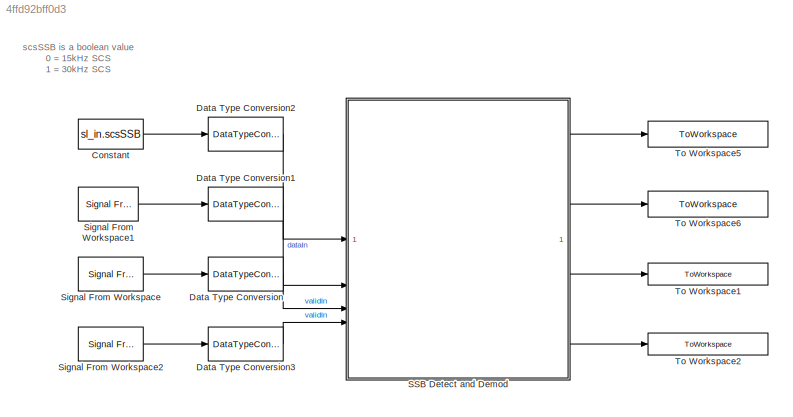
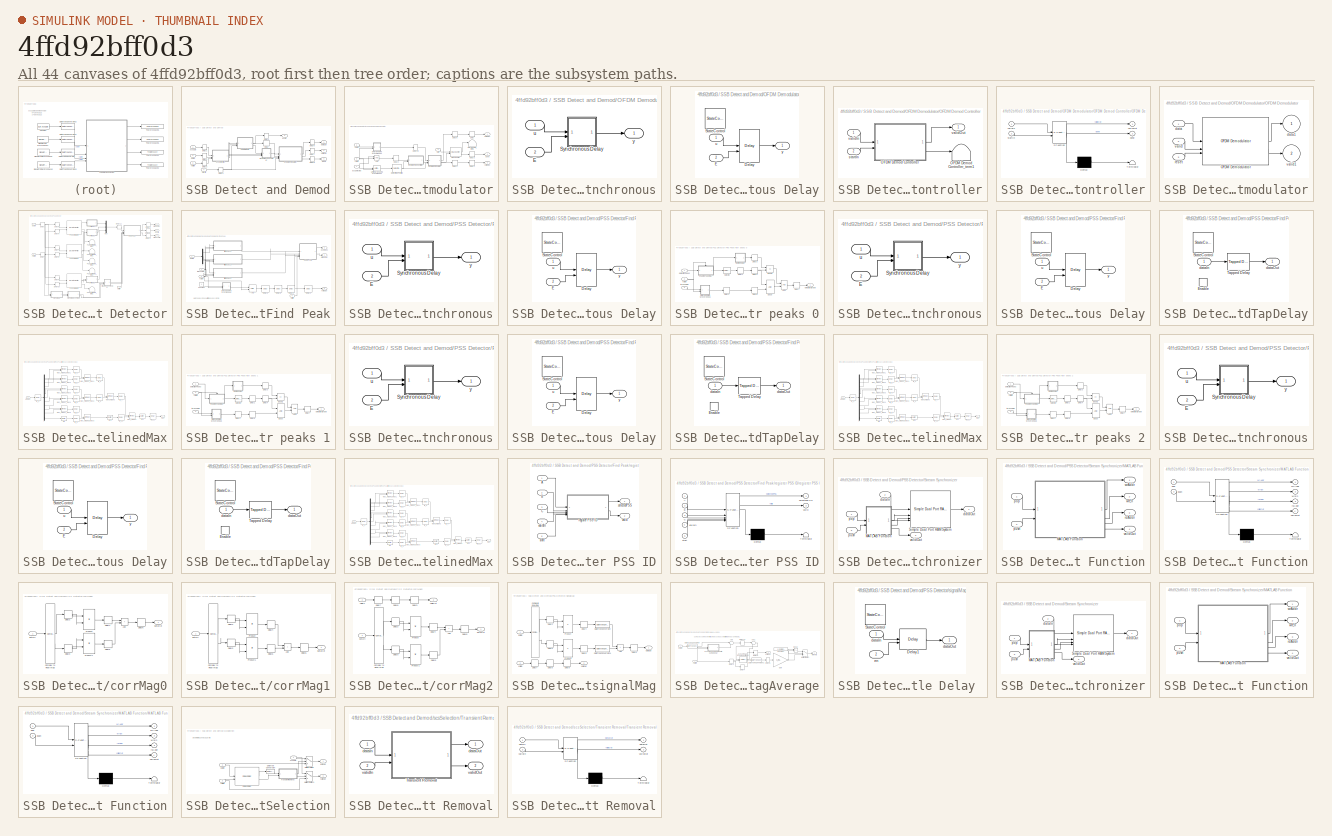
[diagram: thumbnail index - all 44 canvases of the model, root first then tree order]
MODEL slx_4ffd92bff0d3
KIND model
CONFIG AbsTol = auto
CONFIG EnableMultiTasking = off
CONFIG FixedStep = auto
CONFIG MaxStep = auto
CONFIG MinStep = auto
CONFIG RelTol = 1e-3
CONFIG SampleTimeConstraint = Unconstrained
CONFIG SolverName = VariableStepAuto
CONFIG StartTime = 0.0
CONFIG StopTime = 10.0
BLOCK [Constant] Constant
  SampleTime = sl_in.sampleTime
  Value = sl_in.scsSSB
BLOCK [DataTypeConversion] Data Type Conversion
  OutDataTypeStr = boolean
  RndMeth = Floor
  SaturateOnIntegerOverflow = off
BLOCK [DataTypeConversion] Data Type Conversion1
  OutDataTypeStr = fixdt(1,16,15)
  RndMeth = Round
  SaturateOnIntegerOverflow = off
BLOCK [DataTypeConversion] Data Type Conversion2
  OutDataTypeStr = boolean
  RndMeth = Floor
  SaturateOnIntegerOverflow = off
BLOCK [DataTypeConversion] Data Type Conversion3
  OutDataTypeStr = boolean
  RndMeth = Floor
  SaturateOnIntegerOverflow = off
BLOCK [SubSystem] SSB Detect and Demod
BLOCK [Delay] SSB Detect and Demod/Delay
  DelayLength = 1
  InputPortMap = u0
BLOCK [Delay] SSB Detect and Demod/Delay1
  DelayLength = 1
  InputPortMap = u0
BLOCK [Delay] SSB Detect and Demod/Delay2
  DelayLength = 1
  InputPortMap = u0
BLOCK [Delay] SSB Detect and Demod/Delay3
  DelayLength = 1
  InputPortMap = u0
BLOCK [Delay] SSB Detect and Demod/Delay4
  DelayLength = 1
  InputPortMap = u0
BLOCK [Delay] SSB Detect and Demod/Delay5
  DelayLength = 1
  InputPortMap = u0
BLOCK [Delay] SSB Detect and Demod/Delay6
  DelayLength = 1
  InputPortMap = u0
BLOCK [Delay] SSB Detect and Demod/Delay7
  DelayLength = 1
  InputPortMap = u0
BLOCK [Delay] SSB Detect and Demod/Delay8
  DelayLength = 1
  InputPortMap = u0
BLOCK [SubSystem] SSB Detect and Demod/OFDM Demodulator
BLOCK [Logic] SSB Detect and Demod/OFDM Demodulator/AND
  AllPortsSameDT = off
  OutDataTypeStr = boolean
BLOCK [Delay] SSB Detect and Demod/OFDM Demodulator/Delay
  DelayLength = 1
  InputPortMap = u0
BLOCK [SubSystem] SSB Detect and Demod/OFDM Demodulator/Delay Enabled Synchronous
BLOCK [Inport] SSB Detect and Demod/OFDM Demodulator/Delay Enabled Synchronous/E
  OutDataTypeStr = boolean
  Port = 2
  PortDimensions = 1
  SampleTime = 1.62760416666667e-08
BLOCK [SubSystem] SSB Detect and Demod/OFDM Demodulator/Delay Enabled Synchronous/Synchronous Delay
BLOCK [Delay] SSB Detect and Demod/OFDM Demodulator/Delay Enabled Synchronous/Synchronous Delay/Delay
  DelayLength = DelayLength
  InitialCondition = InitialCondition
  InputPortMap = u0,e6
  ShowEnablePort = on
BLOCK [Inport] SSB Detect and Demod/OFDM Demodulator/Delay Enabled Synchronous/Synchronous Delay/E
  OutDataTypeStr = boolean
  Port = 2
  PortDimensions = 1
  SampleTime = 1.62760416666667e-08
BLOCK [StateControl] SSB Detect and Demod/OFDM Demodulator/Delay Enabled Synchronous/Synchronous Delay/StateControl
  StateControl = Synchronous
BLOCK [Inport] SSB Detect and Demod/OFDM Demodulator/Delay Enabled Synchronous/Synchronous Delay/u
  OutDataTypeStr = fixdt(1, 16, 15)
  PortDimensions = 1
  SampleTime = 1.62760416666667e-08
  SignalType = complex
BLOCK [Outport] SSB Detect and Demod/OFDM Demodulator/Delay Enabled Synchronous/Synchronous Delay/y
  SampleTime = 1.62760416666667e-08
BLOCK [Inport] SSB Detect and Demod/OFDM Demodulator/Delay Enabled Synchronous/u
  OutDataTypeStr = fixdt(1, 16, 15)
  PortDimensions = 1
  SampleTime = 1.62760416666667e-08
  SignalType = complex
BLOCK [Outport] SSB Detect and Demod/OFDM Demodulator/Delay Enabled Synchronous/y
  SampleTime = 1.62760416666667e-08
BLOCK [Delay] SSB Detect and Demod/OFDM Demodulator/Delay1
  DelayLength = 1
  InputPortMap = u0
BLOCK [Delay] SSB Detect and Demod/OFDM Demodulator/Delay2
  DelayLength = 1
  InputPortMap = u0
BLOCK [Delay] SSB Detect and Demod/OFDM Demodulator/Delay29
  DelayLength = 1
  InputPortMap = u0
BLOCK [Delay] SSB Detect and Demod/OFDM Demodulator/Delay3
  DelayLength = 1
  InputPortMap = u0
BLOCK [Delay] SSB Detect and Demod/OFDM Demodulator/Delay4
  DelayLength = 1
  InputPortMap = u0
BLOCK [Delay] SSB Detect and Demod/OFDM Demodulator/Delay5
  DelayLength = 1
  InputPortMap = u0
BLOCK [Reference] SSB Detect and Demod/OFDM Demodulator/Detect Rise Positive  REF=simulink/Logic and Bit
Operations/Detect Rise
Positive
  SourceBlock = simulink/Logic and Bit\nOperations/Detect Rise\nPositive
  SourceType = Detect Rise Positive
BLOCK [Reference] SSB Detect and Demod/OFDM Demodulator/HDL Counter  REF=hdlsllib/Sources/HDL Counter
  SourceBlock = hdlsllib/Sources/HDL Counter
  SourceType = HDL Counter
BLOCK [Terminator] SSB Detect and Demod/OFDM Demodulator/HDL Counter_term0
BLOCK [SubSystem] SSB Detect and Demod/OFDM Demodulator/OFDM Demod Controller
BLOCK [SubSystem] SSB Detect and Demod/OFDM Demodulator/OFDM Demod Controller/OFDM Demod Controller
  ErrorFcn = Stateflow.Translate.translate
  PermitHierarchicalResolution = ExplicitOnly
  SFBlockType = MATLAB Function
  TreatAsAtomicUnit = on
BLOCK [Demux] SSB Detect and Demod/OFDM Demodulator/OFDM Demod Controller/OFDM Demod Controller/ Demux 
  Outputs = 1
BLOCK [S-Function] SSB Detect and Demod/OFDM Demodulator/OFDM Demod Controller/OFDM Demod Controller/ SFunction 
  EnableBusSupport = on
  FunctionName = sf_sfun
  PortCounts = [2 3]
  SFcnIsStateOwnerBlock = off
  SFunctionDeploymentMode = off
  Tag = Stateflow S-Function 40
BLOCK [Terminator] SSB Detect and Demod/OFDM Demodulator/OFDM Demod Controller/OFDM Demod Controller/ Terminator 
BLOCK [Outport] SSB Detect and Demod/OFDM Demodulator/OFDM Demod Controller/OFDM Demod Controller/done
  Port = 2
BLOCK [Inport] SSB Detect and Demod/OFDM Demodulator/OFDM Demod Controller/OFDM Demod Controller/startIn
  Port = 2
BLOCK [Inport] SSB Detect and Demod/OFDM Demodulator/OFDM Demod Controller/OFDM Demod Controller/validIn
BLOCK [Outport] SSB Detect and Demod/OFDM Demodulator/OFDM Demod Controller/OFDM Demod Controller/validOut
BLOCK [Terminator] SSB Detect and Demod/OFDM Demodulator/OFDM Demod Controller/OFDM Demod Controller_term1
BLOCK [Inport] SSB Detect and Demod/OFDM Demodulator/OFDM Demod Controller/startIn
  OutDataTypeStr = boolean
  Port = 2
  PortDimensions = 1
  SampleTime = 1.62760416666667e-08
BLOCK [Inport] SSB Detect and Demod/OFDM Demodulator/OFDM Demod Controller/validIn
  OutDataTypeStr = boolean
  PortDimensions = 1
  SampleTime = 1.62760416666667e-08
BLOCK [Outport] SSB Detect and Demod/OFDM Demodulator/OFDM Demod Controller/validOut
  SampleTime = 1.62760416666667e-08
BLOCK [SubSystem] SSB Detect and Demod/OFDM Demodulator/OFDM Demodulator
BLOCK [Reference] SSB Detect and Demod/OFDM Demodulator/OFDM Demodulator/OFDM Demodulator  REF=whdlmod/OFDM Demodulator
  SourceBlock = whdlmod/OFDM Demodulator
  SourceType = OFDM Demodulator
BLOCK [Inport] SSB Detect and Demod/OFDM Demodulator/OFDM Demodulator/data
  OutDataTypeStr = fixdt(1, 16, 15)
  SampleTime = 1.62760416666667e-08
  SignalType = complex
BLOCK [Outport] SSB Detect and Demod/OFDM Demodulator/OFDM Demodulator/data1
  SampleTime = 1.62760416666667e-08
BLOCK [Inport] SSB Detect and Demod/OFDM Demodulator/OFDM Demodulator/reset
  OutDataTypeStr = boolean
  Port = 3
  SampleTime = 1.62760416666667e-08
BLOCK [Inport] SSB Detect and Demod/OFDM Demodulator/OFDM Demodulator/valid
  OutDataTypeStr = boolean
  Port = 2
  SampleTime = 1.62760416666667e-08
BLOCK [Outport] SSB Detect and Demod/OFDM Demodulator/OFDM Demodulator/valid1
  Port = 2
  SampleTime = 1.62760416666667e-08
BLOCK [Reference] SSB Detect and Demod/OFDM Demodulator/Unit Delay Enabled Synchronous  REF=hdlsllib/Discrete/Unit Delay Enabled
Synchronous
  SourceBlock = hdlsllib/Discrete/Unit Delay Enabled\nSynchronous
  SourceType = Unit Delay Enabled Synchronous
BLOCK [Inport] SSB Detect and Demod/OFDM Demodulator/dataIn
  OutDataTypeStr = fixdt(1, 16, 15)
  Port = 2
  PortDimensions = 1
  SampleTime = 1.62760416666667e-08
  SignalType = complex
BLOCK [Outport] SSB Detect and Demod/OFDM Demodulator/dataOut
  SampleTime = 1.62760416666667e-08
BLOCK [Outport] SSB Detect and Demod/OFDM Demodulator/done
  Port = 3
  SampleTime = 1.62760416666667e-08
BLOCK [Inport] SSB Detect and Demod/OFDM Demodulator/pssDetected
  OutDataTypeStr = boolean
  PortDimensions = 1
  SampleTime = 1.62760416666667e-08
BLOCK [Inport] SSB Detect and Demod/OFDM Demodulator/start
  OutDataTypeStr = boolean
  Port = 4
  PortDimensions = 1
  SampleTime = 1.62760416666667e-08
BLOCK [Inport] SSB Detect and Demod/OFDM Demodulator/validIn
  OutDataTypeStr = boolean
  Port = 3
  PortDimensions = 1
  SampleTime = 1.62760416666667e-08
BLOCK [Outport] SSB Detect and Demod/OFDM Demodulator/validOut
  Port = 2
  SampleTime = 1.62760416666667e-08
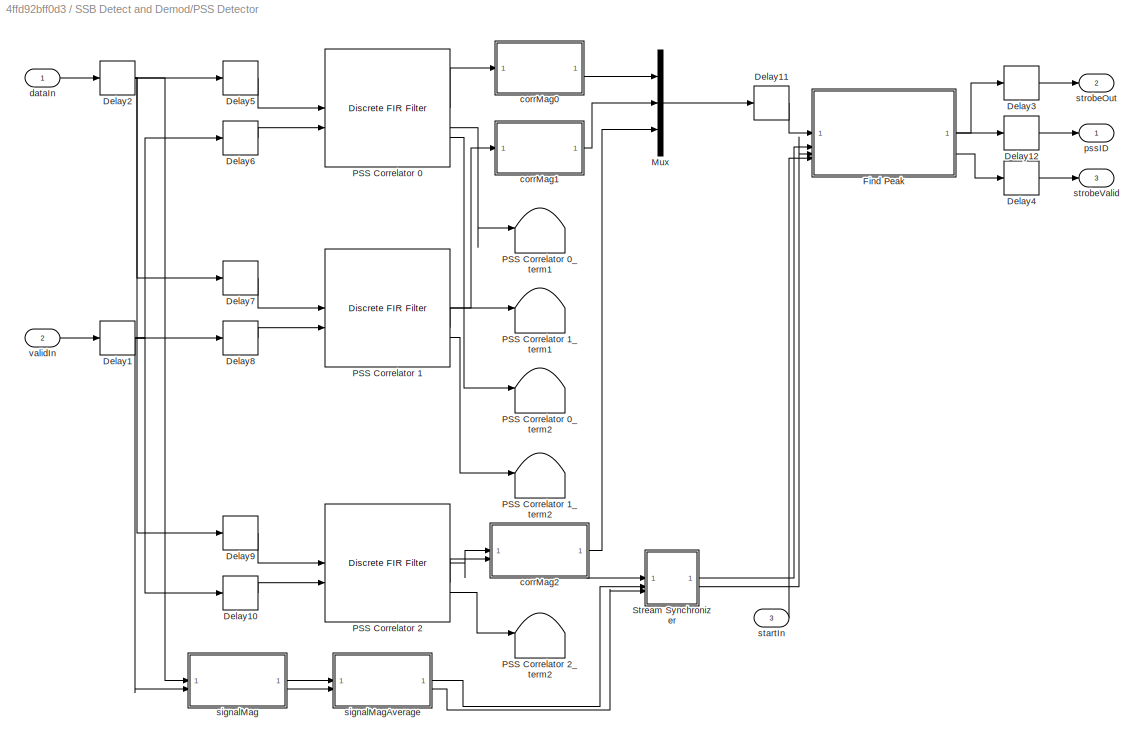
BLOCK [SubSystem] SSB Detect and Demod/PSS Detector
BLOCK [Delay] SSB Detect and Demod/PSS Detector/Delay1
  DelayLength = 1
  InputPortMap = u0
BLOCK [Delay] SSB Detect and Demod/PSS Detector/Delay10
  DelayLength = 1
  InputPortMap = u0
BLOCK [Delay] SSB Detect and Demod/PSS Detector/Delay11
  DelayLength = 1
  InputPortMap = u0
BLOCK [Delay] SSB Detect and Demod/PSS Detector/Delay12
  DelayLength = 1
  InputPortMap = u0
BLOCK [Delay] SSB Detect and Demod/PSS Detector/Delay2
  DelayLength = 1
  InputPortMap = u0
BLOCK [Delay] SSB Detect and Demod/PSS Detector/Delay3
  DelayLength = 1
  InputPortMap = u0
BLOCK [Delay] SSB Detect and Demod/PSS Detector/Delay4
  DelayLength = 1
  InputPortMap = u0
BLOCK [Delay] SSB Detect and Demod/PSS Detector/Delay5
  DelayLength = 1
  InputPortMap = u0
BLOCK [Delay] SSB Detect and Demod/PSS Detector/Delay6
  DelayLength = 1
  InputPortMap = u0
BLOCK [Delay] SSB Detect and Demod/PSS Detector/Delay7
  DelayLength = 1
  InputPortMap = u0
BLOCK [Delay] SSB Detect and Demod/PSS Detector/Delay8
  DelayLength = 1
  InputPortMap = u0
BLOCK [Delay] SSB Detect and Demod/PSS Detector/Delay9
  DelayLength = 1
  InputPortMap = u0
BLOCK [SubSystem] SSB Detect and Demod/PSS Detector/Find Peak
BLOCK [Logic] SSB Detect and Demod/PSS Detector/Find Peak/AND
  AllPortsSameDT = off
  OutDataTypeStr = boolean
  SampleTime = 1.62760416666667e-08
BLOCK [Constant] SSB Detect and Demod/PSS Detector/Find Peak/Constant
  OutDataTypeStr = boolean
  SampleTime = 1.62760416666667e-08
BLOCK [SubSystem] SSB Detect and Demod/PSS Detector/Find Peak/Delay Enabled Synchronous
BLOCK [Inport] SSB Detect and Demod/PSS Detector/Find Peak/Delay Enabled Synchronous/E
  OutDataTypeStr = boolean
  Port = 2
  PortDimensions = 1
  SampleTime = 1.62760416666667e-08
BLOCK [SubSystem] SSB Detect and Demod/PSS Detector/Find Peak/Delay Enabled Synchronous/Synchronous Delay
BLOCK [Delay] SSB Detect and Demod/PSS Detector/Find Peak/Delay Enabled Synchronous/Synchronous Delay/Delay
  DelayLength = DelayLength
  InitialCondition = InitialCondition
  InputPortMap = u0,e6
  ShowEnablePort = on
BLOCK [Inport] SSB Detect and Demod/PSS Detector/Find Peak/Delay Enabled Synchronous/Synchronous Delay/E
  OutDataTypeStr = boolean
  Port = 2
  PortDimensions = 1
  SampleTime = 1.62760416666667e-08
BLOCK [StateControl] SSB Detect and Demod/PSS Detector/Find Peak/Delay Enabled Synchronous/Synchronous Delay/StateControl
  StateControl = Synchronous
BLOCK [Inport] SSB Detect and Demod/PSS Detector/Find Peak/Delay Enabled Synchronous/Synchronous Delay/u
  OutDataTypeStr = boolean
  PortDimensions = 1
  SampleTime = 1.62760416666667e-08
BLOCK [Outport] SSB Detect and Demod/PSS Detector/Find Peak/Delay Enabled Synchronous/Synchronous Delay/y
  SampleTime = 1.62760416666667e-08
BLOCK [Inport] SSB Detect and Demod/PSS Detector/Find Peak/Delay Enabled Synchronous/u
  OutDataTypeStr = boolean
  PortDimensions = 1
  SampleTime = 1.62760416666667e-08
BLOCK [Outport] SSB Detect and Demod/PSS Detector/Find Peak/Delay Enabled Synchronous/y
  SampleTime = 1.62760416666667e-08
BLOCK [Delay] SSB Detect and Demod/PSS Detector/Find Peak/Delay2
  DelayLength = double(1)
  InitialCondition = 0
  InputPortMap = u0
  SampleTime = 1.62760416666667e-08
BLOCK [Delay] SSB Detect and Demod/PSS Detector/Find Peak/Delay3
  DelayLength = double(5)
  InitialCondition = 0
  InputPortMap = u0
  SampleTime = 1.62760416666667e-08
BLOCK [Delay] SSB Detect and Demod/PSS Detector/Find Peak/Delay5
  DelayLength = double(1)
  InitialCondition = 0
  InputPortMap = u0
  SampleTime = 1.62760416666667e-08
BLOCK [Delay] SSB Detect and Demod/PSS Detector/Find Peak/Delay6
  DelayLength = double(1)
  InitialCondition = 0
  InputPortMap = u0
  SampleTime = 1.62760416666667e-08
BLOCK [Inport] SSB Detect and Demod/PSS Detector/Find Peak/dataIn
  OutDataTypeStr = fixdt(1, 36, 26)
  PortDimensions = [3]
  SampleTime = 1.62760416666667e-08
BLOCK [SubSystem] SSB Detect and Demod/PSS Detector/Find Peak/filter peaks 0
BLOCK [Logic] SSB Detect and Demod/PSS Detector/Find Peak/filter peaks 0/AND1
  AllPortsSameDT = off
  OutDataTypeStr = boolean
BLOCK [SubSystem] SSB Detect and Demod/PSS Detector/Find Peak/filter peaks 0/Delay Enabled Synchronous
BLOCK [Inport] SSB Detect and Demod/PSS Detector/Find Peak/filter peaks 0/Delay Enabled Synchronous/E
  OutDataTypeStr = boolean
  Port = 2
  PortDimensions = 1
  SampleTime = 1.62760416666667e-08
BLOCK [SubSystem] SSB Detect and Demod/PSS Detector/Find Peak/filter peaks 0/Delay Enabled Synchronous/Synchronous Delay
BLOCK [Delay] SSB Detect and Demod/PSS Detector/Find Peak/filter peaks 0/Delay Enabled Synchronous/Synchronous Delay/Delay
  DelayLength = DelayLength
  InitialCondition = InitialCondition
  InputPortMap = u0,e6
  ShowEnablePort = on
BLOCK [Inport] SSB Detect and Demod/PSS Detector/Find Peak/filter peaks 0/Delay Enabled Synchronous/Synchronous Delay/E
  OutDataTypeStr = boolean
  Port = 2
  PortDimensions = 1
  SampleTime = 1.62760416666667e-08
BLOCK [StateControl] SSB Detect and Demod/PSS Detector/Find Peak/filter peaks 0/Delay Enabled Synchronous/Synchronous Delay/StateControl
  StateControl = Synchronous
BLOCK [Inport] SSB Detect and Demod/PSS Detector/Find Peak/filter peaks 0/Delay Enabled Synchronous/Synchronous Delay/u
  OutDataTypeStr = fixdt(0, 32, 24)
  PortDimensions = 1
  SampleTime = 1.62760416666667e-08
BLOCK [Outport] SSB Detect and Demod/PSS Detector/Find Peak/filter peaks 0/Delay Enabled Synchronous/Synchronous Delay/y
  SampleTime = 1.62760416666667e-08
BLOCK [Inport] SSB Detect and Demod/PSS Detector/Find Peak/filter peaks 0/Delay Enabled Synchronous/u
  OutDataTypeStr = fixdt(0, 32, 24)
  PortDimensions = 1
  SampleTime = 1.62760416666667e-08
BLOCK [Outport] SSB Detect and Demod/PSS Detector/Find Peak/filter peaks 0/Delay Enabled Synchronous/y
  SampleTime = 1.62760416666667e-08
BLOCK [Delay] SSB Detect and Demod/PSS Detector/Find Peak/filter peaks 0/Delay1
  DelayLength = ceil(log2(sl_in.windowLength))+1
  InputPortMap = u0
BLOCK [Delay] SSB Detect and Demod/PSS Detector/Find Peak/filter peaks 0/Delay2
  DelayLength = ceil(log2(sl_in.windowLength))+1
  InputPortMap = u0
BLOCK [Delay] SSB Detect and Demod/PSS Detector/Find Peak/filter peaks 0/Delay3
  DelayLength = 1
  InputPortMap = u0
BLOCK [Delay] SSB Detect and Demod/PSS Detector/Find Peak/filter peaks 0/Delay4
  DelayLength = 1
  InputPortMap = u0
BLOCK [Delay] SSB Detect and Demod/PSS Detector/Find Peak/filter peaks 0/Delay7
  DelayLength = 1
  InputPortMap = u0
BLOCK [Delay] SSB Detect and Demod/PSS Detector/Find Peak/filter peaks 0/Delay8
  DelayLength = 1
  InitialCondition = 1
  InputPortMap = u0
BLOCK [RelationalOperator] SSB Detect and Demod/PSS Detector/Find Peak/filter peaks 0/Equal
  InputSameDT = off
  OutDataTypeStr = boolean
  RndMeth = Simplest
BLOCK [RelationalOperator] SSB Detect and Demod/PSS Detector/Find Peak/filter peaks 0/Equal1
  InputSameDT = off
  Operator = ==
  OutDataTypeStr = boolean
  RndMeth = Simplest
BLOCK [Selector] SSB Detect and Demod/PSS Detector/Find Peak/filter peaks 0/Selector
  IndexOptions = Index vector (dialog)
  Indices = ceil(sl_in.windowLength/2)
  InputPortWidth = sl_in.windowLength
  OutputSizes = 1
BLOCK [Inport] SSB Detect and Demod/PSS Detector/Find Peak/filter peaks 0/detectionPeaks
  OutDataTypeStr = fixdt(1, 36, 26)
  PortDimensions = 1
  SampleTime = 1.62760416666667e-08
BLOCK [Outport] SSB Detect and Demod/PSS Detector/Find Peak/filter peaks 0/detectionStrobe
  SampleTime = 1.62760416666667e-08
BLOCK [SubSystem] SSB Detect and Demod/PSS Detector/Find Peak/filter peaks 0/enabledTapDelay
BLOCK [EnablePort] SSB Detect and Demod/PSS Detector/Find Peak/filter peaks 0/enabledTapDelay/Enable
  OutDataTypeStr = boolean
BLOCK [StateControl] SSB Detect and Demod/PSS Detector/Find Peak/filter peaks 0/enabledTapDelay/StateControl
  StateControl = Synchronous
BLOCK [Reference] SSB Detect and Demod/PSS Detector/Find Peak/filter peaks 0/enabledTapDelay/Tapped Delay  REF=simulink/Discrete/Tapped Delay
  SourceBlock = simulink/Discrete/Tapped Delay
  SourceType = Tapped Delay Line
BLOCK [Inport] SSB Detect and Demod/PSS Detector/Find Peak/filter peaks 0/enabledTapDelay/dataIn
  OutDataTypeStr = fixdt(1, 36, 26)
  PortDimensions = 1
  SampleTime = 1.62760416666667e-08
BLOCK [Outport] SSB Detect and Demod/PSS Detector/Find Peak/filter peaks 0/enabledTapDelay/dataOut
  InitialOutput = 0
  SampleTime = 1.62760416666667e-08
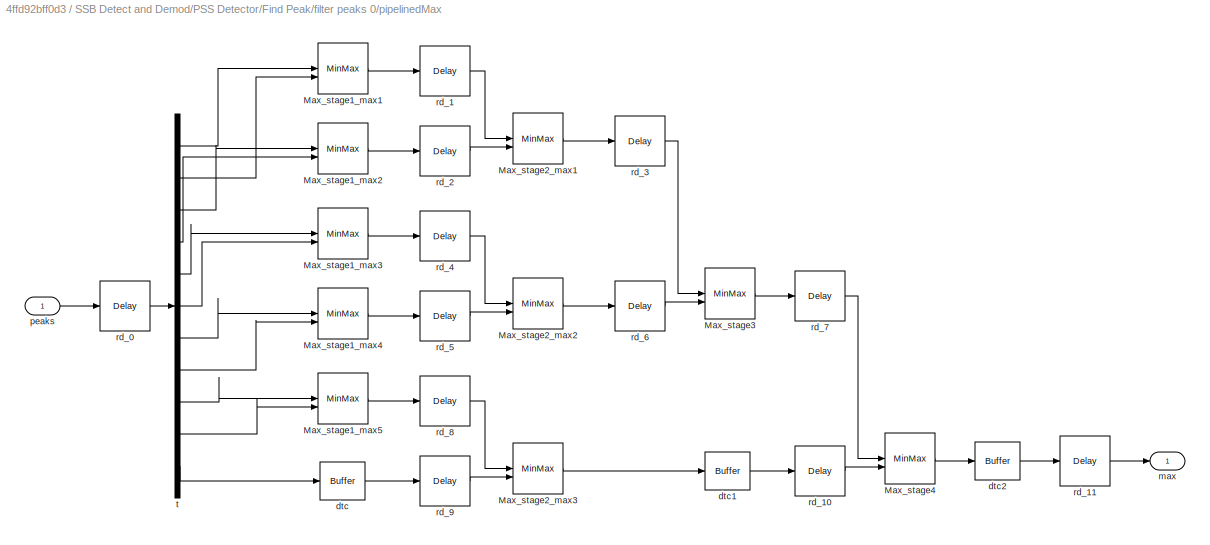
BLOCK [SubSystem] SSB Detect and Demod/PSS Detector/Find Peak/filter peaks 0/pipelinedMax
BLOCK [MinMax] SSB Detect and Demod/PSS Detector/Find Peak/filter peaks 0/pipelinedMax/Max_stage1_max1
  Function = max
  Inputs = 2
BLOCK [MinMax] SSB Detect and Demod/PSS Detector/Find Peak/filter peaks 0/pipelinedMax/Max_stage1_max2
  Function = max
  Inputs = 2
BLOCK [MinMax] SSB Detect and Demod/PSS Detector/Find Peak/filter peaks 0/pipelinedMax/Max_stage1_max3
  Function = max
  Inputs = 2
BLOCK [MinMax] SSB Detect and Demod/PSS Detector/Find Peak/filter peaks 0/pipelinedMax/Max_stage1_max4
  Function = max
  Inputs = 2
BLOCK [MinMax] SSB Detect and Demod/PSS Detector/Find Peak/filter peaks 0/pipelinedMax/Max_stage1_max5
  Function = max
  Inputs = 2
BLOCK [MinMax] SSB Detect and Demod/PSS Detector/Find Peak/filter peaks 0/pipelinedMax/Max_stage2_max1
  Function = max
  Inputs = 2
BLOCK [MinMax] SSB Detect and Demod/PSS Detector/Find Peak/filter peaks 0/pipelinedMax/Max_stage2_max2
  Function = max
  Inputs = 2
BLOCK [MinMax] SSB Detect and Demod/PSS Detector/Find Peak/filter peaks 0/pipelinedMax/Max_stage2_max3
  Function = max
  Inputs = 2
BLOCK [MinMax] SSB Detect and Demod/PSS Detector/Find Peak/filter peaks 0/pipelinedMax/Max_stage3
  Function = max
  Inputs = 2
BLOCK [MinMax] SSB Detect and Demod/PSS Detector/Find Peak/filter peaks 0/pipelinedMax/Max_stage4
  Function = max
  Inputs = 2
BLOCK [Reference] SSB Detect and Demod/PSS Detector/Find Peak/filter peaks 0/pipelinedMax/dtc  REF=hdlmdlgenlib/Buffer
  SourceBlock = hdlmdlgenlib/Buffer
  SourceType = Buffer/Wire
BLOCK [Reference] SSB Detect and Demod/PSS Detector/Find Peak/filter peaks 0/pipelinedMax/dtc1  REF=hdlmdlgenlib/Buffer
  SourceBlock = hdlmdlgenlib/Buffer
  SourceType = Buffer/Wire
BLOCK [Reference] SSB Detect and Demod/PSS Detector/Find Peak/filter peaks 0/pipelinedMax/dtc2  REF=hdlmdlgenlib/Buffer
  SourceBlock = hdlmdlgenlib/Buffer
  SourceType = Buffer/Wire
BLOCK [Outport] SSB Detect and Demod/PSS Detector/Find Peak/filter peaks 0/pipelinedMax/max
  SampleTime = 1.62760416666667e-08
BLOCK [Inport] SSB Detect and Demod/PSS Detector/Find Peak/filter peaks 0/pipelinedMax/peaks
  OutDataTypeStr = fixdt(1, 36, 26)
  PortDimensions = [11]
  SampleTime = 1.62760416666667e-08
BLOCK [Delay] SSB Detect and Demod/PSS Detector/Find Peak/filter peaks 0/pipelinedMax/rd_0
  DelayLength = double(1)
  InitialCondition = 0
  InputPortMap = u0
  SampleTime = 1.62760416666667e-08
BLOCK [Delay] SSB Detect and Demod/PSS Detector/Find Peak/filter peaks 0/pipelinedMax/rd_1
  DelayLength = double(1)
  InitialCondition = 0
  InputPortMap = u0
  SampleTime = 1.62760416666667e-08
BLOCK [Delay] SSB Detect and Demod/PSS Detector/Find Peak/filter peaks 0/pipelinedMax/rd_10
  DelayLength = double(2)
  InitialCondition = 0
  InputPortMap = u0
  SampleTime = 1.62760416666667e-08
BLOCK [Delay] SSB Detect and Demod/PSS Detector/Find Peak/filter peaks 0/pipelinedMax/rd_11
  DelayLength = double(1)
  InitialCondition = 0
  InputPortMap = u0
  SampleTime = 1.62760416666667e-08
BLOCK [Delay] SSB Detect and Demod/PSS Detector/Find Peak/filter peaks 0/pipelinedMax/rd_2
  DelayLength = double(1)
  InitialCondition = 0
  InputPortMap = u0
  SampleTime = 1.62760416666667e-08
BLOCK [Delay] SSB Detect and Demod/PSS Detector/Find Peak/filter peaks 0/pipelinedMax/rd_3
  DelayLength = double(1)
  InitialCondition = 0
  InputPortMap = u0
  SampleTime = 1.62760416666667e-08
BLOCK [Delay] SSB Detect and Demod/PSS Detector/Find Peak/filter peaks 0/pipelinedMax/rd_4
  DelayLength = double(1)
  InitialCondition = 0
  InputPortMap = u0
  SampleTime = 1.62760416666667e-08
BLOCK [Delay] SSB Detect and Demod/PSS Detector/Find Peak/filter peaks 0/pipelinedMax/rd_5
  DelayLength = double(1)
  InitialCondition = 0
  InputPortMap = u0
  SampleTime = 1.62760416666667e-08
BLOCK [Delay] SSB Detect and Demod/PSS Detector/Find Peak/filter peaks 0/pipelinedMax/rd_6
  DelayLength = double(1)
  InitialCondition = 0
  InputPortMap = u0
  SampleTime = 1.62760416666667e-08
BLOCK [Delay] SSB Detect and Demod/PSS Detector/Find Peak/filter peaks 0/pipelinedMax/rd_7
  DelayLength = double(1)
  InitialCondition = 0
  InputPortMap = u0
  SampleTime = 1.62760416666667e-08
BLOCK [Delay] SSB Detect and Demod/PSS Detector/Find Peak/filter peaks 0/pipelinedMax/rd_8
  DelayLength = double(1)
  InitialCondition = 0
  InputPortMap = u0
  SampleTime = 1.62760416666667e-08
BLOCK [Delay] SSB Detect and Demod/PSS Detector/Find Peak/filter peaks 0/pipelinedMax/rd_9
  DelayLength = double(1)
  InitialCondition = 0
  InputPortMap = u0
  SampleTime = 1.62760416666667e-08
BLOCK [Demux] SSB Detect and Demod/PSS Detector/Find Peak/filter peaks 0/pipelinedMax/t
  Outputs = 11
BLOCK [Inport] SSB Detect and Demod/PSS Detector/Find Peak/filter peaks 0/thresholdIn
  OutDataTypeStr = fixdt(0, 32, 24)
  Port = 3
  PortDimensions = 1
  SampleTime = 1.62760416666667e-08
BLOCK [Inport] SSB Detect and Demod/PSS Detector/Find Peak/filter peaks 0/validIn
  OutDataTypeStr = boolean
  Port = 2
  PortDimensions = 1
  SampleTime = 1.62760416666667e-08
BLOCK [SubSystem] SSB Detect and Demod/PSS Detector/Find Peak/filter peaks 1
BLOCK [Logic] SSB Detect and Demod/PSS Detector/Find Peak/filter peaks 1/AND1
  AllPortsSameDT = off
  OutDataTypeStr = boolean
BLOCK [SubSystem] SSB Detect and Demod/PSS Detector/Find Peak/filter peaks 1/Delay Enabled Synchronous
BLOCK [Inport] SSB Detect and Demod/PSS Detector/Find Peak/filter peaks 1/Delay Enabled Synchronous/E
  OutDataTypeStr = boolean
  Port = 2
  PortDimensions = 1
  SampleTime = 1.62760416666667e-08
BLOCK [SubSystem] SSB Detect and Demod/PSS Detector/Find Peak/filter peaks 1/Delay Enabled Synchronous/Synchronous Delay
BLOCK [Delay] SSB Detect and Demod/PSS Detector/Find Peak/filter peaks 1/Delay Enabled Synchronous/Synchronous Delay/Delay
  DelayLength = DelayLength
  InitialCondition = InitialCondition
  InputPortMap = u0,e6
  ShowEnablePort = on
BLOCK [Inport] SSB Detect and Demod/PSS Detector/Find Peak/filter peaks 1/Delay Enabled Synchronous/Synchronous Delay/E
  OutDataTypeStr = boolean
  Port = 2
  PortDimensions = 1
  SampleTime = 1.62760416666667e-08
BLOCK [StateControl] SSB Detect and Demod/PSS Detector/Find Peak/filter peaks 1/Delay Enabled Synchronous/Synchronous Delay/StateControl
  StateControl = Synchronous
BLOCK [Inport] SSB Detect and Demod/PSS Detector/Find Peak/filter peaks 1/Delay Enabled Synchronous/Synchronous Delay/u
  OutDataTypeStr = fixdt(0, 32, 24)
  PortDimensions = 1
  SampleTime = 1.62760416666667e-08
BLOCK [Outport] SSB Detect and Demod/PSS Detector/Find Peak/filter peaks 1/Delay Enabled Synchronous/Synchronous Delay/y
  SampleTime = 1.62760416666667e-08
BLOCK [Inport] SSB Detect and Demod/PSS Detector/Find Peak/filter peaks 1/Delay Enabled Synchronous/u
  OutDataTypeStr = fixdt(0, 32, 24)
  PortDimensions = 1
  SampleTime = 1.62760416666667e-08
BLOCK [Outport] SSB Detect and Demod/PSS Detector/Find Peak/filter peaks 1/Delay Enabled Synchronous/y
  SampleTime = 1.62760416666667e-08
BLOCK [Delay] SSB Detect and Demod/PSS Detector/Find Peak/filter peaks 1/Delay1
  DelayLength = ceil(log2(sl_in.windowLength))+1
  InputPortMap = u0
BLOCK [Delay] SSB Detect and Demod/PSS Detector/Find Peak/filter peaks 1/Delay2
  DelayLength = ceil(log2(sl_in.windowLength))+1
  InputPortMap = u0
BLOCK [Delay] SSB Detect and Demod/PSS Detector/Find Peak/filter peaks 1/Delay3
  DelayLength = 1
  InputPortMap = u0
BLOCK [Delay] SSB Detect and Demod/PSS Detector/Find Peak/filter peaks 1/Delay4
  DelayLength = 1
  InputPortMap = u0
BLOCK [Delay] SSB Detect and Demod/PSS Detector/Find Peak/filter peaks 1/Delay7
  DelayLength = 1
  InputPortMap = u0
BLOCK [Delay] SSB Detect and Demod/PSS Detector/Find Peak/filter peaks 1/Delay8
  DelayLength = 1
  InitialCondition = 1
  InputPortMap = u0
BLOCK [RelationalOperator] SSB Detect and Demod/PSS Detector/Find Peak/filter peaks 1/Equal
  InputSameDT = off
  OutDataTypeStr = boolean
  RndMeth = Simplest
BLOCK [RelationalOperator] SSB Detect and Demod/PSS Detector/Find Peak/filter peaks 1/Equal1
  InputSameDT = off
  Operator = ==
  OutDataTypeStr = boolean
  RndMeth = Simplest
BLOCK [Selector] SSB Detect and Demod/PSS Detector/Find Peak/filter peaks 1/Selector
  IndexOptions = Index vector (dialog)
  Indices = ceil(sl_in.windowLength/2)
  InputPortWidth = sl_in.windowLength
  OutputSizes = 1
BLOCK [Inport] SSB Detect and Demod/PSS Detector/Find Peak/filter peaks 1/detectionPeaks
  OutDataTypeStr = fixdt(1, 36, 26)
  PortDimensions = 1
  SampleTime = 1.62760416666667e-08
BLOCK [Outport] SSB Detect and Demod/PSS Detector/Find Peak/filter peaks 1/detectionStrobe
  SampleTime = 1.62760416666667e-08
BLOCK [SubSystem] SSB Detect and Demod/PSS Detector/Find Peak/filter peaks 1/enabledTapDelay
BLOCK [EnablePort] SSB Detect and Demod/PSS Detector/Find Peak/filter peaks 1/enabledTapDelay/Enable
  OutDataTypeStr = boolean
BLOCK [StateControl] SSB Detect and Demod/PSS Detector/Find Peak/filter peaks 1/enabledTapDelay/StateControl
  StateControl = Synchronous
BLOCK [Reference] SSB Detect and Demod/PSS Detector/Find Peak/filter peaks 1/enabledTapDelay/Tapped Delay  REF=simulink/Discrete/Tapped Delay
  SourceBlock = simulink/Discrete/Tapped Delay
  SourceType = Tapped Delay Line
BLOCK [Inport] SSB Detect and Demod/PSS Detector/Find Peak/filter peaks 1/enabledTapDelay/dataIn
  OutDataTypeStr = fixdt(1, 36, 26)
  PortDimensions = 1
  SampleTime = 1.62760416666667e-08
BLOCK [Outport] SSB Detect and Demod/PSS Detector/Find Peak/filter peaks 1/enabledTapDelay/dataOut
  InitialOutput = 0
  SampleTime = 1.62760416666667e-08
BLOCK [SubSystem] SSB Detect and Demod/PSS Detector/Find Peak/filter peaks 1/pipelinedMax
BLOCK [MinMax] SSB Detect and Demod/PSS Detector/Find Peak/filter peaks 1/pipelinedMax/Max_stage1_max1
  Function = max
  Inputs = 2
BLOCK [MinMax] SSB Detect and Demod/PSS Detector/Find Peak/filter peaks 1/pipelinedMax/Max_stage1_max2
  Function = max
  Inputs = 2
BLOCK [MinMax] SSB Detect and Demod/PSS Detector/Find Peak/filter peaks 1/pipelinedMax/Max_stage1_max3
  Function = max
  Inputs = 2
BLOCK [MinMax] SSB Detect and Demod/PSS Detector/Find Peak/filter peaks 1/pipelinedMax/Max_stage1_max4
  Function = max
  Inputs = 2
BLOCK [MinMax] SSB Detect and Demod/PSS Detector/Find Peak/filter peaks 1/pipelinedMax/Max_stage1_max5
  Function = max
  Inputs = 2
BLOCK [MinMax] SSB Detect and Demod/PSS Detector/Find Peak/filter peaks 1/pipelinedMax/Max_stage2_max1
  Function = max
  Inputs = 2
BLOCK [MinMax] SSB Detect and Demod/PSS Detector/Find Peak/filter peaks 1/pipelinedMax/Max_stage2_max2
  Function = max
  Inputs = 2
BLOCK [MinMax] SSB Detect and Demod/PSS Detector/Find Peak/filter peaks 1/pipelinedMax/Max_stage2_max3
  Function = max
  Inputs = 2
BLOCK [MinMax] SSB Detect and Demod/PSS Detector/Find Peak/filter peaks 1/pipelinedMax/Max_stage3
  Function = max
  Inputs = 2
BLOCK [MinMax] SSB Detect and Demod/PSS Detector/Find Peak/filter peaks 1/pipelinedMax/Max_stage4
  Function = max
  Inputs = 2
BLOCK [Reference] SSB Detect and Demod/PSS Detector/Find Peak/filter peaks 1/pipelinedMax/dtc  REF=hdlmdlgenlib/Buffer
  SourceBlock = hdlmdlgenlib/Buffer
  SourceType = Buffer/Wire
BLOCK [Reference] SSB Detect and Demod/PSS Detector/Find Peak/filter peaks 1/pipelinedMax/dtc1  REF=hdlmdlgenlib/Buffer
  SourceBlock = hdlmdlgenlib/Buffer
  SourceType = Buffer/Wire
BLOCK [Reference] SSB Detect and Demod/PSS Detector/Find Peak/filter peaks 1/pipelinedMax/dtc2  REF=hdlmdlgenlib/Buffer
  SourceBlock = hdlmdlgenlib/Buffer
  SourceType = Buffer/Wire
BLOCK [Outport] SSB Detect and Demod/PSS Detector/Find Peak/filter peaks 1/pipelinedMax/max
  SampleTime = 1.62760416666667e-08
BLOCK [Inport] SSB Detect and Demod/PSS Detector/Find Peak/filter peaks 1/pipelinedMax/peaks
  OutDataTypeStr = fixdt(1, 36, 26)
  PortDimensions = [11]
  SampleTime = 1.62760416666667e-08
BLOCK [Delay] SSB Detect and Demod/PSS Detector/Find Peak/filter peaks 1/pipelinedMax/rd_0
  DelayLength = double(1)
  InitialCondition = 0
  InputPortMap = u0
  SampleTime = 1.62760416666667e-08
BLOCK [Delay] SSB Detect and Demod/PSS Detector/Find Peak/filter peaks 1/pipelinedMax/rd_1
  DelayLength = double(1)
  InitialCondition = 0
  InputPortMap = u0
  SampleTime = 1.62760416666667e-08
BLOCK [Delay] SSB Detect and Demod/PSS Detector/Find Peak/filter peaks 1/pipelinedMax/rd_10
  DelayLength = double(2)
  InitialCondition = 0
  InputPortMap = u0
  SampleTime = 1.62760416666667e-08
BLOCK [Delay] SSB Detect and Demod/PSS Detector/Find Peak/filter peaks 1/pipelinedMax/rd_11
  DelayLength = double(1)
  InitialCondition = 0
  InputPortMap = u0
  SampleTime = 1.62760416666667e-08
BLOCK [Delay] SSB Detect and Demod/PSS Detector/Find Peak/filter peaks 1/pipelinedMax/rd_2
  DelayLength = double(1)
  InitialCondition = 0
  InputPortMap = u0
  SampleTime = 1.62760416666667e-08
BLOCK [Delay] SSB Detect and Demod/PSS Detector/Find Peak/filter peaks 1/pipelinedMax/rd_3
  DelayLength = double(1)
  InitialCondition = 0
  InputPortMap = u0
  SampleTime = 1.62760416666667e-08
BLOCK [Delay] SSB Detect and Demod/PSS Detector/Find Peak/filter peaks 1/pipelinedMax/rd_4
  DelayLength = double(1)
  InitialCondition = 0
  InputPortMap = u0
  SampleTime = 1.62760416666667e-08
BLOCK [Delay] SSB Detect and Demod/PSS Detector/Find Peak/filter peaks 1/pipelinedMax/rd_5
  DelayLength = double(1)
  InitialCondition = 0
  InputPortMap = u0
  SampleTime = 1.62760416666667e-08
BLOCK [Delay] SSB Detect and Demod/PSS Detector/Find Peak/filter peaks 1/pipelinedMax/rd_6
  DelayLength = double(1)
  InitialCondition = 0
  InputPortMap = u0
  SampleTime = 1.62760416666667e-08
BLOCK [Delay] SSB Detect and Demod/PSS Detector/Find Peak/filter peaks 1/pipelinedMax/rd_7
  DelayLength = double(1)
  InitialCondition = 0
  InputPortMap = u0
  SampleTime = 1.62760416666667e-08
BLOCK [Delay] SSB Detect and Demod/PSS Detector/Find Peak/filter peaks 1/pipelinedMax/rd_8
  DelayLength = double(1)
  InitialCondition = 0
  InputPortMap = u0
  SampleTime = 1.62760416666667e-08
BLOCK [Delay] SSB Detect and Demod/PSS Detector/Find Peak/filter peaks 1/pipelinedMax/rd_9
  DelayLength = double(1)
  InitialCondition = 0
  InputPortMap = u0
  SampleTime = 1.62760416666667e-08
BLOCK [Demux] SSB Detect and Demod/PSS Detector/Find Peak/filter peaks 1/pipelinedMax/t
  Outputs = 11
BLOCK [Inport] SSB Detect and Demod/PSS Detector/Find Peak/filter peaks 1/thresholdIn
  OutDataTypeStr = fixdt(0, 32, 24)
  Port = 3
  PortDimensions = 1
  SampleTime = 1.62760416666667e-08
BLOCK [Inport] SSB Detect and Demod/PSS Detector/Find Peak/filter peaks 1/validIn
  OutDataTypeStr = boolean
  Port = 2
  PortDimensions = 1
  SampleTime = 1.62760416666667e-08
BLOCK [SubSystem] SSB Detect and Demod/PSS Detector/Find Peak/filter peaks 2
BLOCK [Logic] SSB Detect and Demod/PSS Detector/Find Peak/filter peaks 2/AND1
  AllPortsSameDT = off
  OutDataTypeStr = boolean
BLOCK [SubSystem] SSB Detect and Demod/PSS Detector/Find Peak/filter peaks 2/Delay Enabled Synchronous
BLOCK [Inport] SSB Detect and Demod/PSS Detector/Find Peak/filter peaks 2/Delay Enabled Synchronous/E
  OutDataTypeStr = boolean
  Port = 2
  PortDimensions = 1
  SampleTime = 1.62760416666667e-08
BLOCK [SubSystem] SSB Detect and Demod/PSS Detector/Find Peak/filter peaks 2/Delay Enabled Synchronous/Synchronous Delay
BLOCK [Delay] SSB Detect and Demod/PSS Detector/Find Peak/filter peaks 2/Delay Enabled Synchronous/Synchronous Delay/Delay
  DelayLength = DelayLength
  InitialCondition = InitialCondition
  InputPortMap = u0,e6
  ShowEnablePort = on
BLOCK [Inport] SSB Detect and Demod/PSS Detector/Find Peak/filter peaks 2/Delay Enabled Synchronous/Synchronous Delay/E
  OutDataTypeStr = boolean
  Port = 2
  PortDimensions = 1
  SampleTime = 1.62760416666667e-08
BLOCK [StateControl] SSB Detect and Demod/PSS Detector/Find Peak/filter peaks 2/Delay Enabled Synchronous/Synchronous Delay/StateControl
  StateControl = Synchronous
BLOCK [Inport] SSB Detect and Demod/PSS Detector/Find Peak/filter peaks 2/Delay Enabled Synchronous/Synchronous Delay/u
  OutDataTypeStr = fixdt(0, 32, 24)
  PortDimensions = 1
  SampleTime = 1.62760416666667e-08
BLOCK [Outport] SSB Detect and Demod/PSS Detector/Find Peak/filter peaks 2/Delay Enabled Synchronous/Synchronous Delay/y
  SampleTime = 1.62760416666667e-08
BLOCK [Inport] SSB Detect and Demod/PSS Detector/Find Peak/filter peaks 2/Delay Enabled Synchronous/u
  OutDataTypeStr = fixdt(0, 32, 24)
  PortDimensions = 1
  SampleTime = 1.62760416666667e-08
BLOCK [Outport] SSB Detect and Demod/PSS Detector/Find Peak/filter peaks 2/Delay Enabled Synchronous/y
  SampleTime = 1.62760416666667e-08
BLOCK [Delay] SSB Detect and Demod/PSS Detector/Find Peak/filter peaks 2/Delay1
  DelayLength = ceil(log2(sl_in.windowLength))+1
  InputPortMap = u0
BLOCK [Delay] SSB Detect and Demod/PSS Detector/Find Peak/filter peaks 2/Delay2
  DelayLength = ceil(log2(sl_in.windowLength))+1
  InputPortMap = u0
BLOCK [Delay] SSB Detect and Demod/PSS Detector/Find Peak/filter peaks 2/Delay3
  DelayLength = 1
  InputPortMap = u0
BLOCK [Delay] SSB Detect and Demod/PSS Detector/Find Peak/filter peaks 2/Delay4
  DelayLength = 1
  InputPortMap = u0
BLOCK [Delay] SSB Detect and Demod/PSS Detector/Find Peak/filter peaks 2/Delay7
  DelayLength = 1
  InputPortMap = u0
BLOCK [Delay] SSB Detect and Demod/PSS Detector/Find Peak/filter peaks 2/Delay8
  DelayLength = 1
  InitialCondition = 1
  InputPortMap = u0
BLOCK [RelationalOperator] SSB Detect and Demod/PSS Detector/Find Peak/filter peaks 2/Equal
  InputSameDT = off
  OutDataTypeStr = boolean
  RndMeth = Simplest
BLOCK [RelationalOperator] SSB Detect and Demod/PSS Detector/Find Peak/filter peaks 2/Equal1
  InputSameDT = off
  Operator = ==
  OutDataTypeStr = boolean
  RndMeth = Simplest
BLOCK [Selector] SSB Detect and Demod/PSS Detector/Find Peak/filter peaks 2/Selector
  IndexOptions = Index vector (dialog)
  Indices = ceil(sl_in.windowLength/2)
  InputPortWidth = sl_in.windowLength
  OutputSizes = 1
BLOCK [Inport] SSB Detect and Demod/PSS Detector/Find Peak/filter peaks 2/detectionPeaks
  OutDataTypeStr = fixdt(1, 36, 26)
  PortDimensions = 1
  SampleTime = 1.62760416666667e-08
BLOCK [Outport] SSB Detect and Demod/PSS Detector/Find Peak/filter peaks 2/detectionStrobe
  SampleTime = 1.62760416666667e-08
BLOCK [SubSystem] SSB Detect and Demod/PSS Detector/Find Peak/filter peaks 2/enabledTapDelay
BLOCK [EnablePort] SSB Detect and Demod/PSS Detector/Find Peak/filter peaks 2/enabledTapDelay/Enable
  OutDataTypeStr = boolean
BLOCK [StateControl] SSB Detect and Demod/PSS Detector/Find Peak/filter peaks 2/enabledTapDelay/StateControl
  StateControl = Synchronous
BLOCK [Reference] SSB Detect and Demod/PSS Detector/Find Peak/filter peaks 2/enabledTapDelay/Tapped Delay  REF=simulink/Discrete/Tapped Delay
  SourceBlock = simulink/Discrete/Tapped Delay
  SourceType = Tapped Delay Line
BLOCK [Inport] SSB Detect and Demod/PSS Detector/Find Peak/filter peaks 2/enabledTapDelay/dataIn
  OutDataTypeStr = fixdt(1, 36, 26)
  PortDimensions = 1
  SampleTime = 1.62760416666667e-08
BLOCK [Outport] SSB Detect and Demod/PSS Detector/Find Peak/filter peaks 2/enabledTapDelay/dataOut
  InitialOutput = 0
  SampleTime = 1.62760416666667e-08
BLOCK [SubSystem] SSB Detect and Demod/PSS Detector/Find Peak/filter peaks 2/pipelinedMax
BLOCK [MinMax] SSB Detect and Demod/PSS Detector/Find Peak/filter peaks 2/pipelinedMax/Max_stage1_max1
  Function = max
  Inputs = 2
BLOCK [MinMax] SSB Detect and Demod/PSS Detector/Find Peak/filter peaks 2/pipelinedMax/Max_stage1_max2
  Function = max
  Inputs = 2
BLOCK [MinMax] SSB Detect and Demod/PSS Detector/Find Peak/filter peaks 2/pipelinedMax/Max_stage1_max3
  Function = max
  Inputs = 2
BLOCK [MinMax] SSB Detect and Demod/PSS Detector/Find Peak/filter peaks 2/pipelinedMax/Max_stage1_max4
  Function = max
  Inputs = 2
BLOCK [MinMax] SSB Detect and Demod/PSS Detector/Find Peak/filter peaks 2/pipelinedMax/Max_stage1_max5
  Function = max
  Inputs = 2
BLOCK [MinMax] SSB Detect and Demod/PSS Detector/Find Peak/filter peaks 2/pipelinedMax/Max_stage2_max1
  Function = max
  Inputs = 2
BLOCK [MinMax] SSB Detect and Demod/PSS Detector/Find Peak/filter peaks 2/pipelinedMax/Max_stage2_max2
  Function = max
  Inputs = 2
BLOCK [MinMax] SSB Detect and Demod/PSS Detector/Find Peak/filter peaks 2/pipelinedMax/Max_stage2_max3
  Function = max
  Inputs = 2
BLOCK [MinMax] SSB Detect and Demod/PSS Detector/Find Peak/filter peaks 2/pipelinedMax/Max_stage3
  Function = max
  Inputs = 2
BLOCK [MinMax] SSB Detect and Demod/PSS Detector/Find Peak/filter peaks 2/pipelinedMax/Max_stage4
  Function = max
  Inputs = 2
BLOCK [Reference] SSB Detect and Demod/PSS Detector/Find Peak/filter peaks 2/pipelinedMax/dtc  REF=hdlmdlgenlib/Buffer
  SourceBlock = hdlmdlgenlib/Buffer
  SourceType = Buffer/Wire
BLOCK [Reference] SSB Detect and Demod/PSS Detector/Find Peak/filter peaks 2/pipelinedMax/dtc1  REF=hdlmdlgenlib/Buffer
  SourceBlock = hdlmdlgenlib/Buffer
  SourceType = Buffer/Wire
BLOCK [Reference] SSB Detect and Demod/PSS Detector/Find Peak/filter peaks 2/pipelinedMax/dtc2  REF=hdlmdlgenlib/Buffer
  SourceBlock = hdlmdlgenlib/Buffer
  SourceType = Buffer/Wire
BLOCK [Outport] SSB Detect and Demod/PSS Detector/Find Peak/filter peaks 2/pipelinedMax/max
  SampleTime = 1.62760416666667e-08
BLOCK [Inport] SSB Detect and Demod/PSS Detector/Find Peak/filter peaks 2/pipelinedMax/peaks
  OutDataTypeStr = fixdt(1, 36, 26)
  PortDimensions = [11]
  SampleTime = 1.62760416666667e-08
BLOCK [Delay] SSB Detect and Demod/PSS Detector/Find Peak/filter peaks 2/pipelinedMax/rd_0
  DelayLength = double(1)
  InitialCondition = 0
  InputPortMap = u0
  SampleTime = 1.62760416666667e-08
BLOCK [Delay] SSB Detect and Demod/PSS Detector/Find Peak/filter peaks 2/pipelinedMax/rd_1
  DelayLength = double(1)
  InitialCondition = 0
  InputPortMap = u0
  SampleTime = 1.62760416666667e-08
BLOCK [Delay] SSB Detect and Demod/PSS Detector/Find Peak/filter peaks 2/pipelinedMax/rd_10
  DelayLength = double(2)
  InitialCondition = 0
  InputPortMap = u0
  SampleTime = 1.62760416666667e-08
BLOCK [Delay] SSB Detect and Demod/PSS Detector/Find Peak/filter peaks 2/pipelinedMax/rd_11
  DelayLength = double(1)
  InitialCondition = 0
  InputPortMap = u0
  SampleTime = 1.62760416666667e-08
BLOCK [Delay] SSB Detect and Demod/PSS Detector/Find Peak/filter peaks 2/pipelinedMax/rd_2
  DelayLength = double(1)
  InitialCondition = 0
  InputPortMap = u0
  SampleTime = 1.62760416666667e-08
BLOCK [Delay] SSB Detect and Demod/PSS Detector/Find Peak/filter peaks 2/pipelinedMax/rd_3
  DelayLength = double(1)
  InitialCondition = 0
  InputPortMap = u0
  SampleTime = 1.62760416666667e-08
BLOCK [Delay] SSB Detect and Demod/PSS Detector/Find Peak/filter peaks 2/pipelinedMax/rd_4
  DelayLength = double(1)
  InitialCondition = 0
  InputPortMap = u0
  SampleTime = 1.62760416666667e-08
BLOCK [Delay] SSB Detect and Demod/PSS Detector/Find Peak/filter peaks 2/pipelinedMax/rd_5
  DelayLength = double(1)
  InitialCondition = 0
  InputPortMap = u0
  SampleTime = 1.62760416666667e-08
BLOCK [Delay] SSB Detect and Demod/PSS Detector/Find Peak/filter peaks 2/pipelinedMax/rd_6
  DelayLength = double(1)
  InitialCondition = 0
  InputPortMap = u0
  SampleTime = 1.62760416666667e-08
BLOCK [Delay] SSB Detect and Demod/PSS Detector/Find Peak/filter peaks 2/pipelinedMax/rd_7
  DelayLength = double(1)
  InitialCondition = 0
  InputPortMap = u0
  SampleTime = 1.62760416666667e-08
BLOCK [Delay] SSB Detect and Demod/PSS Detector/Find Peak/filter peaks 2/pipelinedMax/rd_8
  DelayLength = double(1)
  InitialCondition = 0
  InputPortMap = u0
  SampleTime = 1.62760416666667e-08
BLOCK [Delay] SSB Detect and Demod/PSS Detector/Find Peak/filter peaks 2/pipelinedMax/rd_9
  DelayLength = double(1)
  InitialCondition = 0
  InputPortMap = u0
  SampleTime = 1.62760416666667e-08
BLOCK [Demux] SSB Detect and Demod/PSS Detector/Find Peak/filter peaks 2/pipelinedMax/t
  Outputs = 11
BLOCK [Inport] SSB Detect and Demod/PSS Detector/Find Peak/filter peaks 2/thresholdIn
  OutDataTypeStr = fixdt(0, 32, 24)
  Port = 3
  PortDimensions = 1
  SampleTime = 1.62760416666667e-08
BLOCK [Inport] SSB Detect and Demod/PSS Detector/Find Peak/filter peaks 2/validIn
  OutDataTypeStr = boolean
  Port = 2
  PortDimensions = 1
  SampleTime = 1.62760416666667e-08
BLOCK [Outport] SSB Detect and Demod/PSS Detector/Find Peak/pssIndex
  Port = 2
  SampleTime = 1.62760416666667e-08
BLOCK [SubSystem] SSB Detect and Demod/PSS Detector/Find Peak/register PSS ID
BLOCK [Inport] SSB Detect and Demod/PSS Detector/Find Peak/register PSS ID/A
  OutDataTypeStr = boolean
  PortDimensions = 1
  SampleTime = 1.62760416666667e-08
BLOCK [Inport] SSB Detect and Demod/PSS Detector/Find Peak/register PSS ID/B
  OutDataTypeStr = boolean
  Port = 2
  PortDimensions = 1
  SampleTime = 1.62760416666667e-08
BLOCK [Inport] SSB Detect and Demod/PSS Detector/Find Peak/register PSS ID/C
  OutDataTypeStr = boolean
  Port = 3
  PortDimensions = 1
  SampleTime = 1.62760416666667e-08
BLOCK [SubSystem] SSB Detect and Demod/PSS Detector/Find Peak/register PSS ID/register PSS ID
  ErrorFcn = Stateflow.Translate.translate
  LibrarySourceBlock = simulink/User-Defined\nFunctions/MATLAB Function
  PermitHierarchicalResolution = ExplicitOnly
  SFBlockType = MATLAB Function
  TreatAsAtomicUnit = on
BLOCK [Demux] SSB Detect and Demod/PSS Detector/Find Peak/register PSS ID/register PSS ID/ Demux 
  Outputs = 1
BLOCK [S-Function] SSB Detect and Demod/PSS Detector/Find Peak/register PSS ID/register PSS ID/ SFunction 
  EnableBusSupport = on
  FunctionName = sf_sfun
  PortCounts = [5 3]
  SFcnIsStateOwnerBlock = off
  SFunctionDeploymentMode = off
  Tag = Stateflow S-Function 1
BLOCK [Terminator] SSB Detect and Demod/PSS Detector/Find Peak/register PSS ID/register PSS ID/ Terminator 
BLOCK [Inport] SSB Detect and Demod/PSS Detector/Find Peak/register PSS ID/register PSS ID/A
BLOCK [Inport] SSB Detect and Demod/PSS Detector/Find Peak/register PSS ID/register PSS ID/B
  Port = 2
BLOCK [Inport] SSB Detect and Demod/PSS Detector/Find Peak/register PSS ID/register PSS ID/C
  Port = 3
BLOCK [Outport] SSB Detect and Demod/PSS Detector/Find Peak/register PSS ID/register PSS ID/selectedPSS
BLOCK [Inport] SSB Detect and Demod/PSS Detector/Find Peak/register PSS ID/register PSS ID/start
  Port = 5
BLOCK [Outport] SSB Detect and Demod/PSS Detector/Find Peak/register PSS ID/register PSS ID/valid
  Port = 2
BLOCK [Inport] SSB Detect and Demod/PSS Detector/Find Peak/register PSS ID/register PSS ID/validIn
  Port = 4
BLOCK [Outport] SSB Detect and Demod/PSS Detector/Find Peak/register PSS ID/selectedPSS
  SampleTime = 1.62760416666667e-08
BLOCK [Inport] SSB Detect and Demod/PSS Detector/Find Peak/register PSS ID/start
  OutDataTypeStr = boolean
  Port = 5
  PortDimensions = 1
  SampleTime = 1.62760416666667e-08
BLOCK [Outport] SSB Detect and Demod/PSS Detector/Find Peak/register PSS ID/valid
  Port = 2
  SampleTime = 1.62760416666667e-08
BLOCK [Inport] SSB Detect and Demod/PSS Detector/Find Peak/register PSS ID/validIn
  OutDataTypeStr = boolean
  Port = 4
  PortDimensions = 1
  SampleTime = 1.62760416666667e-08
BLOCK [Inport] SSB Detect and Demod/PSS Detector/Find Peak/startIn
  OutDataTypeStr = boolean
  Port = 4
  PortDimensions = 1
  SampleTime = 1.62760416666667e-08
BLOCK [Outport] SSB Detect and Demod/PSS Detector/Find Peak/strobeOut
  SampleTime = 1.62760416666667e-08
BLOCK [Demux] SSB Detect and Demod/PSS Detector/Find Peak/t
  Outputs = 3
BLOCK [Inport] SSB Detect and Demod/PSS Detector/Find Peak/thresholdIn
  OutDataTypeStr = fixdt(0, 32, 24)
  Port = 2
  PortDimensions = 1
  SampleTime = 1.62760416666667e-08
BLOCK [Inport] SSB Detect and Demod/PSS Detector/Find Peak/validIn
  OutDataTypeStr = boolean
  Port = 3
  PortDimensions = 1
  SampleTime = 1.62760416666667e-08
BLOCK [Outport] SSB Detect and Demod/PSS Detector/Find Peak/validOut
  Port = 3
  SampleTime = 1.62760416666667e-08
BLOCK [Mux] SSB Detect and Demod/PSS Detector/Mux
  DisplayOption = bar
  Inputs = 3
BLOCK [Reference] SSB Detect and Demod/PSS Detector/PSS Correlator 0  REF=dsphdlfiltering2/Discrete FIR Filter
  SourceBlock = dsphdlfiltering2/Discrete FIR Filter
  SourceType = Discrete FIR Filter
BLOCK [Terminator] SSB Detect and Demod/PSS Detector/PSS Correlator 0_term1
BLOCK [Terminator] SSB Detect and Demod/PSS Detector/PSS Correlator 0_term2
BLOCK [Reference] SSB Detect and Demod/PSS Detector/PSS Correlator 1  REF=dsphdlfiltering2/Discrete FIR Filter
  SourceBlock = dsphdlfiltering2/Discrete FIR Filter
  SourceType = Discrete FIR Filter
BLOCK [Terminator] SSB Detect and Demod/PSS Detector/PSS Correlator 1_term1
BLOCK [Terminator] SSB Detect and Demod/PSS Detector/PSS Correlator 1_term2
BLOCK [Reference] SSB Detect and Demod/PSS Detector/PSS Correlator 2  REF=dsphdlfiltering2/Discrete FIR Filter
  SourceBlock = dsphdlfiltering2/Discrete FIR Filter
  SourceType = Discrete FIR Filter
BLOCK [Terminator] SSB Detect and Demod/PSS Detector/PSS Correlator 2_term2
BLOCK [SubSystem] SSB Detect and Demod/PSS Detector/Stream Synchronizer
BLOCK [SubSystem] SSB Detect and Demod/PSS Detector/Stream Synchronizer/MATLAB Function
BLOCK [SubSystem] SSB Detect and Demod/PSS Detector/Stream Synchronizer/MATLAB Function/MATLAB Function
  ErrorFcn = Stateflow.Translate.translate
  InitFcn = Simulink.suppressDiagnostic(gcb, 'Stateflow:Runtime:DataOverflowErrorMSLD');
  PermitHierarchicalResolution = ExplicitOnly
  SFBlockType = MATLAB Function
  TreatAsAtomicUnit = on
BLOCK [Demux] SSB Detect and Demod/PSS Detector/Stream Synchronizer/MATLAB Function/MATLAB Function/ Demux 
  Outputs = 1
BLOCK [S-Function] SSB Detect and Demod/PSS Detector/Stream Synchronizer/MATLAB Function/MATLAB Function/ SFunction 
  EnableBusSupport = on
  FunctionName = sf_sfun
  Parameters = depth
  PortCounts = [2 5]
  SFcnIsStateOwnerBlock = off
  SFunctionDeploymentMode = off
  Tag = Stateflow S-Function 3
BLOCK [Terminator] SSB Detect and Demod/PSS Detector/Stream Synchronizer/MATLAB Function/MATLAB Function/ Terminator 
BLOCK [Inport] SSB Detect and Demod/PSS Detector/Stream Synchronizer/MATLAB Function/MATLAB Function/pop
BLOCK [Inport] SSB Detect and Demod/PSS Detector/Stream Synchronizer/MATLAB Function/MATLAB Function/push
  Port = 2
BLOCK [Outport] SSB Detect and Demod/PSS Detector/Stream Synchronizer/MATLAB Function/MATLAB Function/rdAddr
  Port = 3
BLOCK [Outport] SSB Detect and Demod/PSS Detector/Stream Synchronizer/MATLAB Function/MATLAB Function/validOut
  Port = 4
BLOCK [Outport] SSB Detect and Demod/PSS Detector/Stream Synchronizer/MATLAB Function/MATLAB Function/wrAddr
BLOCK [Outport] SSB Detect and Demod/PSS Detector/Stream Synchronizer/MATLAB Function/MATLAB Function/wrEn
  Port = 2
BLOCK [Inport] SSB Detect and Demod/PSS Detector/Stream Synchronizer/MATLAB Function/pop
  OutDataTypeStr = boolean
  PortDimensions = 1
  SampleTime = 1.62760416666667e-08
BLOCK [Inport] SSB Detect and Demod/PSS Detector/Stream Synchronizer/MATLAB Function/push
  OutDataTypeStr = boolean
  Port = 2
  PortDimensions = 1
  SampleTime = 1.62760416666667e-08
BLOCK [Outport] SSB Detect and Demod/PSS Detector/Stream Synchronizer/MATLAB Function/rdAddr
  Port = 3
  SampleTime = 1.62760416666667e-08
BLOCK [Outport] SSB Detect and Demod/PSS Detector/Stream Synchronizer/MATLAB Function/validOut
  Port = 4
  SampleTime = 1.62760416666667e-08
BLOCK [Outport] SSB Detect and Demod/PSS Detector/Stream Synchronizer/MATLAB Function/wrAddr
  SampleTime = 1.62760416666667e-08
BLOCK [Outport] SSB Detect and Demod/PSS Detector/Stream Synchronizer/MATLAB Function/wrEn
  Port = 2
  SampleTime = 1.62760416666667e-08
BLOCK [Reference] SSB Detect and Demod/PSS Detector/Stream Synchronizer/Simple Dual Port RAM System  REF=hdlsllib/HDL RAMs/Simple Dual Port
RAM System
  SourceBlock = hdlsllib/HDL RAMs/Simple Dual Port\nRAM System
  SourceType = hdl.RAM
BLOCK [Inport] SSB Detect and Demod/PSS Detector/Stream Synchronizer/dataIn
  OutDataTypeStr = fixdt(0, 32, 24)
  Port = 2
  PortDimensions = 1
  SampleTime = 1.62760416666667e-08
BLOCK [Outport] SSB Detect and Demod/PSS Detector/Stream Synchronizer/dataOut
  SampleTime = 1.62760416666667e-08
BLOCK [Inport] SSB Detect and Demod/PSS Detector/Stream Synchronizer/pop
  OutDataTypeStr = boolean
  PortDimensions = 1
  SampleTime = 1.62760416666667e-08
BLOCK [Inport] SSB Detect and Demod/PSS Detector/Stream Synchronizer/push
  OutDataTypeStr = boolean
  Port = 3
  PortDimensions = 1
  SampleTime = 1.62760416666667e-08
BLOCK [Outport] SSB Detect and Demod/PSS Detector/Stream Synchronizer/validOut
  Port = 2
  SampleTime = 1.62760416666667e-08
BLOCK [SubSystem] SSB Detect and Demod/PSS Detector/corrMag0
BLOCK [Sum] SSB Detect and Demod/PSS Detector/corrMag0/Add
  AccumDataTypeStr = Inherit: Same as first input
  IconShape = rectangular
  OutDataTypeStr = Inherit: Same as accumulator
BLOCK [ComplexToRealImag] SSB Detect and Demod/PSS Detector/corrMag0/Complex to Real-Imag
BLOCK [Delay] SSB Detect and Demod/PSS Detector/corrMag0/Delay2
  DelayLength = 1
  InputPortMap = u0
BLOCK [Delay] SSB Detect and Demod/PSS Detector/corrMag0/Delay3
  DelayLength = 1
  InputPortMap = u0
BLOCK [Delay] SSB Detect and Demod/PSS Detector/corrMag0/Delay4
  DelayLength = 1
  InputPortMap = u0
BLOCK [Delay] SSB Detect and Demod/PSS Detector/corrMag0/Delay5
  DelayLength = 1
  InputPortMap = u0
BLOCK [Delay] SSB Detect and Demod/PSS Detector/corrMag0/Delay6
  DelayLength = 1
  InputPortMap = u0
BLOCK [Product] SSB Detect and Demod/PSS Detector/corrMag0/Product
BLOCK [Product] SSB Detect and Demod/PSS Detector/corrMag0/Product1
BLOCK [Inport] SSB Detect and Demod/PSS Detector/corrMag0/dataIn
  OutDataTypeStr = fixdt(1, 18, 13)
  PortDimensions = 1
  SampleTime = 1.62760416666667e-08
  SignalType = complex
BLOCK [Outport] SSB Detect and Demod/PSS Detector/corrMag0/dataOut
  SampleTime = 1.62760416666667e-08
BLOCK [SubSystem] SSB Detect and Demod/PSS Detector/corrMag1
BLOCK [Sum] SSB Detect and Demod/PSS Detector/corrMag1/Add
  AccumDataTypeStr = Inherit: Same as first input
  IconShape = rectangular
  OutDataTypeStr = Inherit: Same as accumulator
BLOCK [ComplexToRealImag] SSB Detect and Demod/PSS Detector/corrMag1/Complex to Real-Imag
BLOCK [Delay] SSB Detect and Demod/PSS Detector/corrMag1/Delay2
  DelayLength = 1
  InputPortMap = u0
BLOCK [Delay] SSB Detect and Demod/PSS Detector/corrMag1/Delay3
  DelayLength = 1
  InputPortMap = u0
BLOCK [Delay] SSB Detect and Demod/PSS Detector/corrMag1/Delay4
  DelayLength = 1
  InputPortMap = u0
BLOCK [Delay] SSB Detect and Demod/PSS Detector/corrMag1/Delay5
  DelayLength = 1
  InputPortMap = u0
BLOCK [Delay] SSB Detect and Demod/PSS Detector/corrMag1/Delay6
  DelayLength = 1
  InputPortMap = u0
BLOCK [Product] SSB Detect and Demod/PSS Detector/corrMag1/Product
BLOCK [Product] SSB Detect and Demod/PSS Detector/corrMag1/Product1
BLOCK [Inport] SSB Detect and Demod/PSS Detector/corrMag1/dataIn
  OutDataTypeStr = fixdt(1, 18, 13)
  PortDimensions = 1
  SampleTime = 1.62760416666667e-08
  SignalType = complex
BLOCK [Outport] SSB Detect and Demod/PSS Detector/corrMag1/dataOut
  SampleTime = 1.62760416666667e-08
BLOCK [SubSystem] SSB Detect and Demod/PSS Detector/corrMag2
BLOCK [Sum] SSB Detect and Demod/PSS Detector/corrMag2/Add
  AccumDataTypeStr = Inherit: Same as first input
  IconShape = rectangular
  OutDataTypeStr = Inherit: Same as accumulator
BLOCK [ComplexToRealImag] SSB Detect and Demod/PSS Detector/corrMag2/Complex to Real-Imag
BLOCK [Delay] SSB Detect and Demod/PSS Detector/corrMag2/Delay2
  DelayLength = 1
  InputPortMap = u0
BLOCK [Delay] SSB Detect and Demod/PSS Detector/corrMag2/Delay3
  DelayLength = 1
  InputPortMap = u0
BLOCK [Delay] SSB Detect and Demod/PSS Detector/corrMag2/Delay4
  DelayLength = 1
  InputPortMap = u0
BLOCK [Delay] SSB Detect and Demod/PSS Detector/corrMag2/Delay5
  DelayLength = 1
  InputPortMap = u0
BLOCK [Delay] SSB Detect and Demod/PSS Detector/corrMag2/Delay6
  DelayLength = 1
  InputPortMap = u0
BLOCK [Delay] SSB Detect and Demod/PSS Detector/corrMag2/Delay7
  DelayLength = 1
  InputPortMap = u0
BLOCK [Delay] SSB Detect and Demod/PSS Detector/corrMag2/Delay8
  DelayLength = 1
  InputPortMap = u0
BLOCK [Delay] SSB Detect and Demod/PSS Detector/corrMag2/Delay9
  DelayLength = 1
  InputPortMap = u0
BLOCK [Product] SSB Detect and Demod/PSS Detector/corrMag2/Product
BLOCK [Product] SSB Detect and Demod/PSS Detector/corrMag2/Product1
BLOCK [Inport] SSB Detect and Demod/PSS Detector/corrMag2/dataIn
  OutDataTypeStr = fixdt(1, 18, 13)
  PortDimensions = 1
  SampleTime = 1.62760416666667e-08
  SignalType = complex
BLOCK [Outport] SSB Detect and Demod/PSS Detector/corrMag2/dataOut
  SampleTime = 1.62760416666667e-08
BLOCK [Inport] SSB Detect and Demod/PSS Detector/corrMag2/validIn
  OutDataTypeStr = boolean
  Port = 2
  PortDimensions = 1
  SampleTime = 1.62760416666667e-08
BLOCK [Outport] SSB Detect and Demod/PSS Detector/corrMag2/validOut
  Port = 2
  SampleTime = 1.62760416666667e-08
BLOCK [Inport] SSB Detect and Demod/PSS Detector/dataIn
  OutDataTypeStr = fixdt(1, 16, 15)
  PortDimensions = 1
  SampleTime = 1.62760416666667e-08
  SignalType = complex
BLOCK [Outport] SSB Detect and Demod/PSS Detector/pssID
  SampleTime = 1.62760416666667e-08
BLOCK [SubSystem] SSB Detect and Demod/PSS Detector/signalMag
BLOCK [Sum] SSB Detect and Demod/PSS Detector/signalMag/Add
  IconShape = rectangular
BLOCK [ComplexToRealImag] SSB Detect and Demod/PSS Detector/signalMag/Complex to Real-Imag
BLOCK [DataTypeConversion] SSB Detect and Demod/PSS Detector/signalMag/Data Type Conversion
  OutDataTypeStr = fixdt(0,36,34)
  RndMeth = Floor
  SaturateOnIntegerOverflow = off
BLOCK [DataTypeConversion] SSB Detect and Demod/PSS Detector/signalMag/Data Type Conversion1
  OutDataTypeStr = fixdt(0,36,34)
  RndMeth = Floor
  SaturateOnIntegerOverflow = off
BLOCK [Delay] SSB Detect and Demod/PSS Detector/signalMag/Delay2
  DelayLength = 1
  InputPortMap = u0
BLOCK [Delay] SSB Detect and Demod/PSS Detector/signalMag/Delay3
  DelayLength = 1
  InputPortMap = u0
BLOCK [Delay] SSB Detect and Demod/PSS Detector/signalMag/Delay4
  DelayLength = 1
  InputPortMap = u0
BLOCK [Delay] SSB Detect and Demod/PSS Detector/signalMag/Delay5
  DelayLength = 1
  InputPortMap = u0
BLOCK [Delay] SSB Detect and Demod/PSS Detector/signalMag/Delay6
  DelayLength = 1
  InputPortMap = u0
BLOCK [Delay] SSB Detect and Demod/PSS Detector/signalMag/Delay7
  DelayLength = 1
  InputPortMap = u0
BLOCK [Delay] SSB Detect and Demod/PSS Detector/signalMag/Delay8
  DelayLength = 1
  InputPortMap = u0
BLOCK [Delay] SSB Detect and Demod/PSS Detector/signalMag/Delay9
  DelayLength = 1
  InputPortMap = u0
BLOCK [Product] SSB Detect and Demod/PSS Detector/signalMag/Product
BLOCK [Product] SSB Detect and Demod/PSS Detector/signalMag/Product1
BLOCK [Inport] SSB Detect and Demod/PSS Detector/signalMag/dataIn
  OutDataTypeStr = fixdt(1, 16, 15)
  PortDimensions = 1
  SampleTime = 1.62760416666667e-08
  SignalType = complex
BLOCK [Outport] SSB Detect and Demod/PSS Detector/signalMag/dataOut
  SampleTime = 1.62760416666667e-08
BLOCK [Inport] SSB Detect and Demod/PSS Detector/signalMag/validIn
  OutDataTypeStr = boolean
  Port = 2
  PortDimensions = 1
  SampleTime = 1.62760416666667e-08
BLOCK [Outport] SSB Detect and Demod/PSS Detector/signalMag/validOut
  Port = 2
  SampleTime = 1.62760416666667e-08
BLOCK [SubSystem] SSB Detect and Demod/PSS Detector/signalMagAverage
BLOCK [Sum] SSB Detect and Demod/PSS Detector/signalMagAverage/Add
  AccumDataTypeStr = Inherit: Same as first input
  Inputs = |+-
  OutDataTypeStr = Inherit: Same as accumulator
BLOCK [Sum] SSB Detect and Demod/PSS Detector/signalMagAverage/Add1
  AccumDataTypeStr = Inherit: Same as first input
  Inputs = |++
  OutDataTypeStr = Inherit: Same as accumulator
BLOCK [Constant] SSB Detect and Demod/PSS Detector/signalMagAverage/Constant
  SampleTime = -1
  Value = sl_in.minimumThreshold
BLOCK [DataTypeConversion] SSB Detect and Demod/PSS Detector/signalMagAverage/Data Type Conversion
  OutDataTypeStr = fixdt(0,43,34)
  RndMeth = Floor
  SaturateOnIntegerOverflow = off
BLOCK [DataTypeConversion] SSB Detect and Demod/PSS Detector/signalMagAverage/Data Type Conversion1
  OutDataTypeStr = fixdt(0,32,24)
  RndMeth = Floor
  SaturateOnIntegerOverflow = off
BLOCK [Delay] SSB Detect and Demod/PSS Detector/signalMagAverage/Delay12
  DelayLength = 1
  InitialCondition = 0
  InputPortMap = u0
BLOCK [Delay] SSB Detect and Demod/PSS Detector/signalMagAverage/Delay3
  DelayLength = 1
  InitialCondition = 0
  InputPortMap = u0
BLOCK [Delay] SSB Detect and Demod/PSS Detector/signalMagAverage/Delay4
  DelayLength = 1
  InitialCondition = 0
  InputPortMap = u0
BLOCK [Delay] SSB Detect and Demod/PSS Detector/signalMagAverage/Delay5
  DelayLength = 1
  InitialCondition = 0
  InputPortMap = u0
BLOCK [Delay] SSB Detect and Demod/PSS Detector/signalMagAverage/Delay6
  DelayLength = 1
  InitialCondition = 0
  InputPortMap = u0
BLOCK [RelationalOperator] SSB Detect and Demod/PSS Detector/signalMagAverage/Equal
  InputSameDT = off
  Operator = <=
  OutDataTypeStr = boolean
  RndMeth = Simplest
BLOCK [Gain] SSB Detect and Demod/PSS Detector/signalMagAverage/Gain
  Gain = sl_in.thresholdScaling
  OutDataTypeStr = Inherit: Same as input
  ParamDataTypeStr = Inherit: Inherit from 'Gain'
BLOCK [MultiPortSwitch] SSB Detect and Demod/PSS Detector/signalMagAverage/Multiport Switch
  DataPortOrder = Zero-based contiguous
  InputSameDT = off
  Inputs = 2
  SaturateOnIntegerOverflow = off
  zeroidx = on
BLOCK [SubSystem] SSB Detect and Demod/PSS Detector/signalMagAverage/Synchronous Enabled Nfft Sample Delay 
BLOCK [Delay] SSB Detect and Demod/PSS Detector/signalMagAverage/Synchronous Enabled Nfft Sample Delay /Delay1
  DelayLength = sl_in.Nfft
  InitialCondition = 0
  InputPortMap = u0,e6
  ShowEnablePort = on
  UserDataPersistent = on
BLOCK [StateControl] SSB Detect and Demod/PSS Detector/signalMagAverage/Synchronous Enabled Nfft Sample Delay /StateControl
  StateControl = Synchronous
BLOCK [Inport] SSB Detect and Demod/PSS Detector/signalMagAverage/Synchronous Enabled Nfft Sample Delay /dataIn
  OutDataTypeStr = fixdt(0, 43, 34)
  PortDimensions = 1
  SampleTime = 1.62760416666667e-08
BLOCK [Outport] SSB Detect and Demod/PSS Detector/signalMagAverage/Synchronous Enabled Nfft Sample Delay /dataOut
  SampleTime = 1.62760416666667e-08
  VectorParamsAs1DForOutWhenUnconnected = off
BLOCK [Inport] SSB Detect and Demod/PSS Detector/signalMagAverage/Synchronous Enabled Nfft Sample Delay /en
  OutDataTypeStr = boolean
  Port = 2
  PortDimensions = 1
  SampleTime = 1.62760416666667e-08
BLOCK [Reference] SSB Detect and Demod/PSS Detector/signalMagAverage/Synchronous Enabled Unit Delay  REF=hdlsllib/Discrete/Unit Delay Enabled
Synchronous
  SourceBlock = hdlsllib/Discrete/Unit Delay Enabled\nSynchronous
  SourceType = Unit Delay Enabled Synchronous
BLOCK [Inport] SSB Detect and Demod/PSS Detector/signalMagAverage/dataIn
  OutDataTypeStr = fixdt(0, 37, 34)
  PortDimensions = 1
  SampleTime = 1.62760416666667e-08
BLOCK [Outport] SSB Detect and Demod/PSS Detector/signalMagAverage/threhold
  SampleTime = 1.62760416666667e-08
  VectorParamsAs1DForOutWhenUnconnected = off
BLOCK [Inport] SSB Detect and Demod/PSS Detector/signalMagAverage/validIn
  OutDataTypeStr = boolean
  Port = 2
  PortDimensions = 1
  SampleTime = 1.62760416666667e-08
BLOCK [Outport] SSB Detect and Demod/PSS Detector/signalMagAverage/validOut
  Port = 2
  SampleTime = 1.62760416666667e-08
  VectorParamsAs1DForOutWhenUnconnected = off
BLOCK [Inport] SSB Detect and Demod/PSS Detector/startIn
  OutDataTypeStr = boolean
  Port = 3
  PortDimensions = 1
  SampleTime = 1.62760416666667e-08
BLOCK [Outport] SSB Detect and Demod/PSS Detector/strobeOut
  Port = 2
  SampleTime = 1.62760416666667e-08
BLOCK [Outport] SSB Detect and Demod/PSS Detector/strobeValid
  Port = 3
  SampleTime = 1.62760416666667e-08
BLOCK [Inport] SSB Detect and Demod/PSS Detector/validIn
  OutDataTypeStr = boolean
  Port = 2
  PortDimensions = 1
  SampleTime = 1.62760416666667e-08
BLOCK [SubSystem] SSB Detect and Demod/Stream Synchronizer
BLOCK [SubSystem] SSB Detect and Demod/Stream Synchronizer/MATLAB Function
BLOCK [SubSystem] SSB Detect and Demod/Stream Synchronizer/MATLAB Function/MATLAB Function
  ErrorFcn = Stateflow.Translate.translate
  InitFcn = Simulink.suppressDiagnostic(gcb, 'Stateflow:Runtime:DataOverflowErrorMSLD');
  PermitHierarchicalResolution = ExplicitOnly
  SFBlockType = MATLAB Function
  TreatAsAtomicUnit = on
BLOCK [Demux] SSB Detect and Demod/Stream Synchronizer/MATLAB Function/MATLAB Function/ Demux 
  Outputs = 1
BLOCK [S-Function] SSB Detect and Demod/Stream Synchronizer/MATLAB Function/MATLAB Function/ SFunction 
  EnableBusSupport = on
  FunctionName = sf_sfun
  Parameters = depth
  PortCounts = [2 5]
  SFcnIsStateOwnerBlock = off
  SFunctionDeploymentMode = off
  Tag = Stateflow S-Function 4
BLOCK [Terminator] SSB Detect and Demod/Stream Synchronizer/MATLAB Function/MATLAB Function/ Terminator 
BLOCK [Inport] SSB Detect and Demod/Stream Synchronizer/MATLAB Function/MATLAB Function/pop
BLOCK [Inport] SSB Detect and Demod/Stream Synchronizer/MATLAB Function/MATLAB Function/push
  Port = 2
BLOCK [Outport] SSB Detect and Demod/Stream Synchronizer/MATLAB Function/MATLAB Function/rdAddr
  Port = 3
BLOCK [Outport] SSB Detect and Demod/Stream Synchronizer/MATLAB Function/MATLAB Function/validOut
  Port = 4
BLOCK [Outport] SSB Detect and Demod/Stream Synchronizer/MATLAB Function/MATLAB Function/wrAddr
BLOCK [Outport] SSB Detect and Demod/Stream Synchronizer/MATLAB Function/MATLAB Function/wrEn
  Port = 2
BLOCK [Inport] SSB Detect and Demod/Stream Synchronizer/MATLAB Function/pop
  OutDataTypeStr = boolean
  PortDimensions = 1
  SampleTime = 1.62760416666667e-08
BLOCK [Inport] SSB Detect and Demod/Stream Synchronizer/MATLAB Function/push
  OutDataTypeStr = boolean
  Port = 2
  PortDimensions = 1
  SampleTime = 1.62760416666667e-08
BLOCK [Outport] SSB Detect and Demod/Stream Synchronizer/MATLAB Function/rdAddr
  Port = 3
  SampleTime = 1.62760416666667e-08
BLOCK [Outport] SSB Detect and Demod/Stream Synchronizer/MATLAB Function/validOut
  Port = 4
  SampleTime = 1.62760416666667e-08
BLOCK [Outport] SSB Detect and Demod/Stream Synchronizer/MATLAB Function/wrAddr
  SampleTime = 1.62760416666667e-08
BLOCK [Outport] SSB Detect and Demod/Stream Synchronizer/MATLAB Function/wrEn
  Port = 2
  SampleTime = 1.62760416666667e-08
BLOCK [Reference] SSB Detect and Demod/Stream Synchronizer/Simple Dual Port RAM System  REF=hdlsllib/HDL RAMs/Simple Dual Port
RAM System
  SourceBlock = hdlsllib/HDL RAMs/Simple Dual Port\nRAM System
  SourceType = hdl.RAM
BLOCK [Inport] SSB Detect and Demod/Stream Synchronizer/dataIn
  OutDataTypeStr = fixdt(1, 16, 15)
  Port = 2
  PortDimensions = 1
  SampleTime = 1.62760416666667e-08
  SignalType = complex
BLOCK [Outport] SSB Detect and Demod/Stream Synchronizer/dataOut
  SampleTime = 1.62760416666667e-08
BLOCK [Inport] SSB Detect and Demod/Stream Synchronizer/pop
  OutDataTypeStr = boolean
  PortDimensions = 1
  SampleTime = 1.62760416666667e-08
BLOCK [Inport] SSB Detect and Demod/Stream Synchronizer/push
  OutDataTypeStr = boolean
  Port = 3
  PortDimensions = 1
  SampleTime = 1.62760416666667e-08
BLOCK [Outport] SSB Detect and Demod/Stream Synchronizer/validOut
  Port = 2
  SampleTime = 1.62760416666667e-08
BLOCK [Inport] SSB Detect and Demod/dataIn
  OutDataTypeStr = fixdt(1, 16, 15)
  Port = 2
  PortDimensions = 1
  SampleTime = 1.62760416666667e-08
  SignalType = complex
BLOCK [Outport] SSB Detect and Demod/dataOut
  SampleTime = 1.62760416666667e-08
BLOCK [Outport] SSB Detect and Demod/done
  Port = 4
  SampleTime = 1.62760416666667e-08
BLOCK [Outport] SSB Detect and Demod/pssID
  Port = 3
  SampleTime = 1.62760416666667e-08
BLOCK [Inport] SSB Detect and Demod/scsSSB
  OutDataTypeStr = boolean
  PortDimensions = 1
  SampleTime = 1.62760416666667e-08
BLOCK [SubSystem] SSB Detect and Demod/scsSelection
BLOCK [DataTypeConversion] SSB Detect and Demod/scsSelection/Data Type Conversion
  OutDataTypeStr = fixdt(1,16,15)
  RndMeth = Round
  SaturateOnIntegerOverflow = off
BLOCK [Reference] SSB Detect and Demod/scsSelection/FIR Decimator  REF=dsphdlfiltering2/FIR Decimator
  SourceBlock = dsphdlfiltering2/FIR Decimator
  SourceType = FIR Decimator
BLOCK [MultiPortSwitch] SSB Detect and Demod/scsSelection/Multiport Switch
  DataPortOrder = Zero-based contiguous
  InputSameDT = off
  Inputs = 2
  SaturateOnIntegerOverflow = off
  zeroidx = on
BLOCK [MultiPortSwitch] SSB Detect and Demod/scsSelection/Multiport Switch1
  DataPortOrder = Zero-based contiguous
  InputSameDT = off
  Inputs = 2
  SaturateOnIntegerOverflow = off
  zeroidx = on
BLOCK [SubSystem] SSB Detect and Demod/scsSelection/Transient Removal
BLOCK [SubSystem] SSB Detect and Demod/scsSelection/Transient Removal/Transient Removal
  ErrorFcn = Stateflow.Translate.translate
  PermitHierarchicalResolution = ExplicitOnly
  SFBlockType = MATLAB Function
  TreatAsAtomicUnit = on
BLOCK [Demux] SSB Detect and Demod/scsSelection/Transient Removal/Transient Removal/ Demux 
  Outputs = 1
BLOCK [S-Function] SSB Detect and Demod/scsSelection/Transient Removal/Transient Removal/ SFunction 
  EnableBusSupport = on
  FunctionName = sf_sfun
  Parameters = TransientLength
  PortCounts = [2 3]
  SFcnIsStateOwnerBlock = off
  SFunctionDeploymentMode = off
  Tag = Stateflow S-Function 30
BLOCK [Terminator] SSB Detect and Demod/scsSelection/Transient Removal/Transient Removal/ Terminator 
BLOCK [Inport] SSB Detect and Demod/scsSelection/Transient Removal/Transient Removal/dataIn
BLOCK [Outport] SSB Detect and Demod/scsSelection/Transient Removal/Transient Removal/dataOut
  VectorParamsAs1DForOutWhenUnconnected = off
BLOCK [Inport] SSB Detect and Demod/scsSelection/Transient Removal/Transient Removal/validIn
  Port = 2
BLOCK [Outport] SSB Detect and Demod/scsSelection/Transient Removal/Transient Removal/validOut
  Port = 2
  VectorParamsAs1DForOutWhenUnconnected = off
BLOCK [Inport] SSB Detect and Demod/scsSelection/Transient Removal/dataIn
  OutDataTypeStr = fixdt(1, 16, 15)
  PortDimensions = 1
  SampleTime = 1.62760416666667e-08
  SignalType = complex
BLOCK [Outport] SSB Detect and Demod/scsSelection/Transient Removal/dataOut
  SampleTime = 1.62760416666667e-08
  VectorParamsAs1DForOutWhenUnconnected = off
BLOCK [Inport] SSB Detect and Demod/scsSelection/Transient Removal/validIn
  OutDataTypeStr = boolean
  Port = 2
  PortDimensions = 1
  SampleTime = 1.62760416666667e-08
BLOCK [Outport] SSB Detect and Demod/scsSelection/Transient Removal/validOut
  Port = 2
  SampleTime = 1.62760416666667e-08
  VectorParamsAs1DForOutWhenUnconnected = off
BLOCK [Inport] SSB Detect and Demod/scsSelection/dataIn
  OutDataTypeStr = fixdt(1, 16, 15)
  Port = 2
  PortDimensions = 1
  SampleTime = 1.62760416666667e-08
  SignalType = complex
BLOCK [Outport] SSB Detect and Demod/scsSelection/dataOut
  SampleTime = 1.62760416666667e-08
BLOCK [Inport] SSB Detect and Demod/scsSelection/scsSSB
  OutDataTypeStr = boolean
  PortDimensions = 1
  SampleTime = 1.62760416666667e-08
BLOCK [Inport] SSB Detect and Demod/scsSelection/validIn
  OutDataTypeStr = boolean
  Port = 3
  PortDimensions = 1
  SampleTime = 1.62760416666667e-08
BLOCK [Outport] SSB Detect and Demod/scsSelection/validOut
  Port = 2
  SampleTime = 1.62760416666667e-08
BLOCK [Inport] SSB Detect and Demod/startIn
  OutDataTypeStr = boolean
  Port = 4
  PortDimensions = 1
  SampleTime = 1.62760416666667e-08
BLOCK [Inport] SSB Detect and Demod/validIn
  OutDataTypeStr = boolean
  Port = 3
  PortDimensions = 1
  SampleTime = 1.62760416666667e-08
BLOCK [Outport] SSB Detect and Demod/validOut
  Port = 2
  SampleTime = 1.62760416666667e-08
BLOCK [Reference] Signal From Workspace  REF=dspsrcs4/Signal From
Workspace
  SourceBlock = dspsrcs4/Signal From\nWorkspace
  SourceType = Signal From Workspace
BLOCK [Reference] Signal From Workspace1  REF=dspsrcs4/Signal From
Workspace
  SourceBlock = dspsrcs4/Signal From\nWorkspace
  SourceType = Signal From Workspace
BLOCK [Reference] Signal From Workspace2  REF=dspsrcs4/Signal From
Workspace
  SourceBlock = dspsrcs4/Signal From\nWorkspace
  SourceType = Signal From Workspace
BLOCK [ToWorkspace] To Workspace1
  MaxDataPoints = inf
  SampleTime = -1
  Save2DSignal = 2-D array (concatenate along first dimension)
  VariableName = PSSID
BLOCK [ToWorkspace] To Workspace2
  MaxDataPoints = inf
  SampleTime = -1
  Save2DSignal = 2-D array (concatenate along first dimension)
  VariableName = done
BLOCK [ToWorkspace] To Workspace5
  MaxDataPoints = inf
  SampleTime = -1
  Save2DSignal = 2-D array (concatenate along first dimension)
  VariableName = demodData
BLOCK [ToWorkspace] To Workspace6
  MaxDataPoints = inf
  SampleTime = -1
  Save2DSignal = 2-D array (concatenate along first dimension)
  VariableName = demodValid
ANNOTATION (root): scsSSB is a boolean value 0 = 15kHz SCS 1 = 30kHz SCS
ANNOTATION SSB Detect and Demod/PSS Detector/Find Peak: Match delays in peak filtering subsystems
ANNOTATION SSB Detect and Demod/PSS Detector/signalMagAverage: Sum across a window of Nfft samples using a comb filter followed by an integrator.
ANNOTATION SSB Detect and Demod/scsSelection: Decimate to 15KHz SCS rate
LINE Constant:1 -> Data Type Conversion2:1
LINE Data Type Conversion1:1 -> SSB Detect and Demod:2
LINE Data Type Conversion2:1 -> SSB Detect and Demod:1
LINE Data Type Conversion3:1 -> SSB Detect and Demod:4
LINE Data Type Conversion:1 -> SSB Detect and Demod:3
LINE SSB Detect and Demod/Delay1:1 -> SSB Detect and Demod/scsSelection:1
LINE SSB Detect and Demod/Delay2:1 -> SSB Detect and Demod/scsSelection:2
LINE SSB Detect and Demod/Delay3:1 -> SSB Detect and Demod/scsSelection:3
NET SSB Detect and Demod/Delay4:1 -> SSB Detect and Demod/OFDM Demodulator:4, SSB Detect and Demod/PSS Detector:3
LINE SSB Detect and Demod/Delay5:1 -> SSB Detect and Demod/pssID:1
LINE SSB Detect and Demod/Delay6:1 -> SSB Detect and Demod/dataOut:1
LINE SSB Detect and Demod/Delay7:1 -> SSB Detect and Demod/validOut:1
LINE SSB Detect and Demod/Delay8:1 -> SSB Detect and Demod/done:1
LINE SSB Detect and Demod/Delay:1 -> SSB Detect and Demod/OFDM Demodulator:1
LINE SSB Detect and Demod/OFDM Demodulator/AND:1 -> SSB Detect and Demod/OFDM Demodulator/Delay2:1
LINE SSB Detect and Demod/OFDM Demodulator/Delay Enabled Synchronous/E:1 -> SSB Detect and Demod/OFDM Demodulator/Delay Enabled Synchronous/Synchronous Delay:2
LINE SSB Detect and Demod/OFDM Demodulator/Delay Enabled Synchronous/Synchronous Delay/Delay:1 -> SSB Detect and Demod/OFDM Demodulator/Delay Enabled Synchronous/Synchronous Delay/y:1
LINE SSB Detect and Demod/OFDM Demodulator/Delay Enabled Synchronous/Synchronous Delay/E:1 -> SSB Detect and Demod/OFDM Demodulator/Delay Enabled Synchronous/Synchronous Delay/Delay:2
LINE SSB Detect and Demod/OFDM Demodulator/Delay Enabled Synchronous/Synchronous Delay/u:1 -> SSB Detect and Demod/OFDM Demodulator/Delay Enabled Synchronous/Synchronous Delay/Delay:1
LINE SSB Detect and Demod/OFDM Demodulator/Delay Enabled Synchronous/Synchronous Delay:1 -> SSB Detect and Demod/OFDM Demodulator/Delay Enabled Synchronous/y:1
LINE SSB Detect and Demod/OFDM Demodulator/Delay Enabled Synchronous/u:1 -> SSB Detect and Demod/OFDM Demodulator/Delay Enabled Synchronous/Synchronous Delay:1
LINE SSB Detect and Demod/OFDM Demodulator/Delay Enabled Synchronous:1 -> SSB Detect and Demod/OFDM Demodulator/Delay29:1
LINE SSB Detect and Demod/OFDM Demodulator/Delay1:1 -> SSB Detect and Demod/OFDM Demodulator/validOut:1
LINE SSB Detect and Demod/OFDM Demodulator/Delay29:1 -> SSB Detect and Demod/OFDM Demodulator/OFDM Demodulator:1
LINE SSB Detect and Demod/OFDM Demodulator/Delay2:1 -> SSB Detect and Demod/OFDM Demodulator/OFDM Demod Controller:1
LINE SSB Detect and Demod/OFDM Demodulator/Delay3:1 -> SSB Detect and Demod/OFDM Demodulator/done:1
LINE SSB Detect and Demod/OFDM Demodulator/Delay4:1 -> SSB Detect and Demod/OFDM Demodulator/Delay1:1
LINE SSB Detect and Demod/OFDM Demodulator/Delay5:1 -> SSB Detect and Demod/OFDM Demodulator/Delay:1
LINE SSB Detect and Demod/OFDM Demodulator/Delay:1 -> SSB Detect and Demod/OFDM Demodulator/dataOut:1
NET SSB Detect and Demod/OFDM Demodulator/Detect Rise Positive:1 -> SSB Detect and Demod/OFDM Demodulator/OFDM Demod Controller:2, SSB Detect and Demod/OFDM Demodulator/OFDM Demodulator:3
LINE SSB Detect and Demod/OFDM Demodulator/HDL Counter:1 -> SSB Detect and Demod/OFDM Demodulator/HDL Counter_term0:1
LINE SSB Detect and Demod/OFDM Demodulator/HDL Counter:2 -> SSB Detect and Demod/OFDM Demodulator/Delay3:1
LINE SSB Detect and Demod/OFDM Demodulator/OFDM Demod Controller/OFDM Demod Controller:1 -> SSB Detect and Demod/OFDM Demodulator/OFDM Demod Controller/validOut:1
LINE SSB Detect and Demod/OFDM Demodulator/OFDM Demod Controller/OFDM Demod Controller:2 -> SSB Detect and Demod/OFDM Demodulator/OFDM Demod Controller/OFDM Demod Controller_term1:1
LINE SSB Detect and Demod/OFDM Demodulator/OFDM Demod Controller/startIn:1 -> SSB Detect and Demod/OFDM Demodulator/OFDM Demod Controller/OFDM Demod Controller:2
LINE SSB Detect and Demod/OFDM Demodulator/OFDM Demod Controller/validIn:1 -> SSB Detect and Demod/OFDM Demodulator/OFDM Demod Controller/OFDM Demod Controller:1
LINE SSB Detect and Demod/OFDM Demodulator/OFDM Demod Controller:1 -> SSB Detect and Demod/OFDM Demodulator/OFDM Demodulator:2
LINE SSB Detect and Demod/OFDM Demodulator/OFDM Demodulator/OFDM Demodulator:1 -> SSB Detect and Demod/OFDM Demodulator/OFDM Demodulator/data1:1
LINE SSB Detect and Demod/OFDM Demodulator/OFDM Demodulator/OFDM Demodulator:2 -> SSB Detect and Demod/OFDM Demodulator/OFDM Demodulator/valid1:1
LINE SSB Detect and Demod/OFDM Demodulator/OFDM Demodulator/data:1 -> SSB Detect and Demod/OFDM Demodulator/OFDM Demodulator/OFDM Demodulator:1
LINE SSB Detect and Demod/OFDM Demodulator/OFDM Demodulator/reset:1 -> SSB Detect and Demod/OFDM Demodulator/OFDM Demodulator/OFDM Demodulator:3
LINE SSB Detect and Demod/OFDM Demodulator/OFDM Demodulator/valid:1 -> SSB Detect and Demod/OFDM Demodulator/OFDM Demodulator/OFDM Demodulator:2
LINE SSB Detect and Demod/OFDM Demodulator/OFDM Demodulator:1 -> SSB Detect and Demod/OFDM Demodulator/Delay5:1
NET SSB Detect and Demod/OFDM Demodulator/OFDM Demodulator:2 -> SSB Detect and Demod/OFDM Demodulator/Delay4:1, SSB Detect and Demod/OFDM Demodulator/HDL Counter:2
LINE SSB Detect and Demod/OFDM Demodulator/Unit Delay Enabled Synchronous:1 -> SSB Detect and Demod/OFDM Demodulator/Detect Rise Positive:1
LINE SSB Detect and Demod/OFDM Demodulator/dataIn:1 -> SSB Detect and Demod/OFDM Demodulator/Delay Enabled Synchronous:1
NET SSB Detect and Demod/OFDM Demodulator/pssDetected:1 -> SSB Detect and Demod/OFDM Demodulator/AND:1, SSB Detect and Demod/OFDM Demodulator/Unit Delay Enabled Synchronous:1
LINE SSB Detect and Demod/OFDM Demodulator/start:1 -> SSB Detect and Demod/OFDM Demodulator/HDL Counter:1
NET SSB Detect and Demod/OFDM Demodulator/validIn:1 -> SSB Detect and Demod/OFDM Demodulator/AND:2, SSB Detect and Demod/OFDM Demodulator/Delay Enabled Synchronous:2, SSB Detect and Demod/OFDM Demodulator/Unit Delay Enabled Synchronous:2
LINE SSB Detect and Demod/OFDM Demodulator:1 -> SSB Detect and Demod/Delay6:1
LINE SSB Detect and Demod/OFDM Demodulator:2 -> SSB Detect and Demod/Delay7:1
LINE SSB Detect and Demod/OFDM Demodulator:3 -> SSB Detect and Demod/Delay8:1
LINE SSB Detect and Demod/PSS Detector/Delay10:1 -> SSB Detect and Demod/PSS Detector/PSS Correlator 2:2
LINE SSB Detect and Demod/PSS Detector/Delay11:1 -> SSB Detect and Demod/PSS Detector/Find Peak:1
LINE SSB Detect and Demod/PSS Detector/Delay12:1 -> SSB Detect and Demod/PSS Detector/pssID:1
NET SSB Detect and Demod/PSS Detector/Delay1:1 -> SSB Detect and Demod/PSS Detector/Delay10:1, SSB Detect and Demod/PSS Detector/Delay6:1, SSB Detect and Demod/PSS Detector/Delay8:1, SSB Detect and Demod/PSS Detector/signalMag:2
NET SSB Detect and Demod/PSS Detector/Delay2:1 -> SSB Detect and Demod/PSS Detector/Delay5:1, SSB Detect and Demod/PSS Detector/Delay7:1, SSB Detect and Demod/PSS Detector/Delay9:1, SSB Detect and Demod/PSS Detector/signalMag:1
LINE SSB Detect and Demod/PSS Detector/Delay3:1 -> SSB Detect and Demod/PSS Detector/strobeOut:1
LINE SSB Detect and Demod/PSS Detector/Delay4:1 -> SSB Detect and Demod/PSS Detector/strobeValid:1
LINE SSB Detect and Demod/PSS Detector/Delay5:1 -> SSB Detect and Demod/PSS Detector/PSS Correlator 0:1
LINE SSB Detect and Demod/PSS Detector/Delay6:1 -> SSB Detect and Demod/PSS Detector/PSS Correlator 0:2
LINE SSB Detect and Demod/PSS Detector/Delay7:1 -> SSB Detect and Demod/PSS Detector/PSS Correlator 1:1
LINE SSB Detect and Demod/PSS Detector/Delay8:1 -> SSB Detect and Demod/PSS Detector/PSS Correlator 1:2
LINE SSB Detect and Demod/PSS Detector/Delay9:1 -> SSB Detect and Demod/PSS Detector/PSS Correlator 2:1
LINE SSB Detect and Demod/PSS Detector/Find Peak/AND:1 -> SSB Detect and Demod/PSS Detector/Find Peak/Delay3:1
LINE SSB Detect and Demod/PSS Detector/Find Peak/Constant:1 -> SSB Detect and Demod/PSS Detector/Find Peak/Delay Enabled Synchronous:1
LINE SSB Detect and Demod/PSS Detector/Find Peak/Delay Enabled Synchronous/E:1 -> SSB Detect and Demod/PSS Detector/Find Peak/Delay Enabled Synchronous/Synchronous Delay:2
LINE SSB Detect and Demod/PSS Detector/Find Peak/Delay Enabled Synchronous/Synchronous Delay/Delay:1 -> SSB Detect and Demod/PSS Detector/Find Peak/Delay Enabled Synchronous/Synchronous Delay/y:1
LINE SSB Detect and Demod/PSS Detector/Find Peak/Delay Enabled Synchronous/Synchronous Delay/E:1 -> SSB Detect and Demod/PSS Detector/Find Peak/Delay Enabled Synchronous/Synchronous Delay/Delay:2
LINE SSB Detect and Demod/PSS Detector/Find Peak/Delay Enabled Synchronous/Synchronous Delay/u:1 -> SSB Detect and Demod/PSS Detector/Find Peak/Delay Enabled Synchronous/Synchronous Delay/Delay:1
LINE SSB Detect and Demod/PSS Detector/Find Peak/Delay Enabled Synchronous/Synchronous Delay:1 -> SSB Detect and Demod/PSS Detector/Find Peak/Delay Enabled Synchronous/y:1
LINE SSB Detect and Demod/PSS Detector/Find Peak/Delay Enabled Synchronous/u:1 -> SSB Detect and Demod/PSS Detector/Find Peak/Delay Enabled Synchronous/Synchronous Delay:1
LINE SSB Detect and Demod/PSS Detector/Find Peak/Delay Enabled Synchronous:1 -> SSB Detect and Demod/PSS Detector/Find Peak/AND:1
LINE SSB Detect and Demod/PSS Detector/Find Peak/Delay2:1 -> SSB Detect and Demod/PSS Detector/Find Peak/validOut:1
LINE SSB Detect and Demod/PSS Detector/Find Peak/Delay3:1 -> SSB Detect and Demod/PSS Detector/Find Peak/Delay5:1
LINE SSB Detect and Demod/PSS Detector/Find Peak/Delay5:1 -> SSB Detect and Demod/PSS Detector/Find Peak/Delay6:1
NET SSB Detect and Demod/PSS Detector/Find Peak/Delay6:1 -> SSB Detect and Demod/PSS Detector/Find Peak/Delay2:1, SSB Detect and Demod/PSS Detector/Find Peak/register PSS ID:4
LINE SSB Detect and Demod/PSS Detector/Find Peak/dataIn:1 -> SSB Detect and Demod/PSS Detector/Find Peak/t:1
LINE SSB Detect and Demod/PSS Detector/Find Peak/filter peaks 0/AND1:1 -> SSB Detect and Demod/PSS Detector/Find Peak/filter peaks 0/Delay7:1
LINE SSB Detect and Demod/PSS Detector/Find Peak/filter peaks 0/Delay Enabled Synchronous/E:1 -> SSB Detect and Demod/PSS Detector/Find Peak/filter peaks 0/Delay Enabled Synchronous/Synchronous Delay:2
LINE SSB Detect and Demod/PSS Detector/Find Peak/filter peaks 0/Delay Enabled Synchronous/Synchronous Delay/Delay:1 -> SSB Detect and Demod/PSS Detector/Find Peak/filter peaks 0/Delay Enabled Synchronous/Synchronous Delay/y:1
LINE SSB Detect and Demod/PSS Detector/Find Peak/filter peaks 0/Delay Enabled Synchronous/Synchronous Delay/E:1 -> SSB Detect and Demod/PSS Detector/Find Peak/filter peaks 0/Delay Enabled Synchronous/Synchronous Delay/Delay:2
LINE SSB Detect and Demod/PSS Detector/Find Peak/filter peaks 0/Delay Enabled Synchronous/Synchronous Delay/u:1 -> SSB Detect and Demod/PSS Detector/Find Peak/filter peaks 0/Delay Enabled Synchronous/Synchronous Delay/Delay:1
LINE SSB Detect and Demod/PSS Detector/Find Peak/filter peaks 0/Delay Enabled Synchronous/Synchronous Delay:1 -> SSB Detect and Demod/PSS Detector/Find Peak/filter peaks 0/Delay Enabled Synchronous/y:1
LINE SSB Detect and Demod/PSS Detector/Find Peak/filter peaks 0/Delay Enabled Synchronous/u:1 -> SSB Detect and Demod/PSS Detector/Find Peak/filter peaks 0/Delay Enabled Synchronous/Synchronous Delay:1
LINE SSB Detect and Demod/PSS Detector/Find Peak/filter peaks 0/Delay Enabled Synchronous:1 -> SSB Detect and Demod/PSS Detector/Find Peak/filter peaks 0/Delay2:1
LINE SSB Detect and Demod/PSS Detector/Find Peak/filter peaks 0/Delay1:1 -> SSB Detect and Demod/PSS Detector/Find Peak/filter peaks 0/Delay4:1
LINE SSB Detect and Demod/PSS Detector/Find Peak/filter peaks 0/Delay2:1 -> SSB Detect and Demod/PSS Detector/Find Peak/filter peaks 0/Delay8:1
LINE SSB Detect and Demod/PSS Detector/Find Peak/filter peaks 0/Delay3:1 -> SSB Detect and Demod/PSS Detector/Find Peak/filter peaks 0/Equal1:1
NET SSB Detect and Demod/PSS Detector/Find Peak/filter peaks 0/Delay4:1 -> SSB Detect and Demod/PSS Detector/Find Peak/filter peaks 0/Equal1:2, SSB Detect and Demod/PSS Detector/Find Peak/filter peaks 0/Equal:1
LINE SSB Detect and Demod/PSS Detector/Find Peak/filter peaks 0/Delay7:1 -> SSB Detect and Demod/PSS Detector/Find Peak/filter peaks 0/detectionStrobe:1
LINE SSB Detect and Demod/PSS Detector/Find Peak/filter peaks 0/Delay8:1 -> SSB Detect and Demod/PSS Detector/Find Peak/filter peaks 0/Equal:2
LINE SSB Detect and Demod/PSS Detector/Find Peak/filter peaks 0/Equal1:1 -> SSB Detect and Demod/PSS Detector/Find Peak/filter peaks 0/AND1:1
LINE SSB Detect and Demod/PSS Detector/Find Peak/filter peaks 0/Equal:1 -> SSB Detect and Demod/PSS Detector/Find Peak/filter peaks 0/AND1:2
LINE SSB Detect and Demod/PSS Detector/Find Peak/filter peaks 0/Selector:1 -> SSB Detect and Demod/PSS Detector/Find Peak/filter peaks 0/Delay1:1
LINE SSB Detect and Demod/PSS Detector/Find Peak/filter peaks 0/detectionPeaks:1 -> SSB Detect and Demod/PSS Detector/Find Peak/filter peaks 0/enabledTapDelay:1
LINE SSB Detect and Demod/PSS Detector/Find Peak/filter peaks 0/enabledTapDelay/Tapped Delay:1 -> SSB Detect and Demod/PSS Detector/Find Peak/filter peaks 0/enabledTapDelay/dataOut:1
LINE SSB Detect and Demod/PSS Detector/Find Peak/filter peaks 0/enabledTapDelay/dataIn:1 -> SSB Detect and Demod/PSS Detector/Find Peak/filter peaks 0/enabledTapDelay/Tapped Delay:1
NET SSB Detect and Demod/PSS Detector/Find Peak/filter peaks 0/enabledTapDelay:1 -> SSB Detect and Demod/PSS Detector/Find Peak/filter peaks 0/Selector:1, SSB Detect and Demod/PSS Detector/Find Peak/filter peaks 0/pipelinedMax:1
LINE SSB Detect and Demod/PSS Detector/Find Peak/filter peaks 0/pipelinedMax/Max_stage1_max1:1 -> SSB Detect and Demod/PSS Detector/Find Peak/filter peaks 0/pipelinedMax/rd_1:1
LINE SSB Detect and Demod/PSS Detector/Find Peak/filter peaks 0/pipelinedMax/Max_stage1_max2:1 -> SSB Detect and Demod/PSS Detector/Find Peak/filter peaks 0/pipelinedMax/rd_2:1
LINE SSB Detect and Demod/PSS Detector/Find Peak/filter peaks 0/pipelinedMax/Max_stage1_max3:1 -> SSB Detect and Demod/PSS Detector/Find Peak/filter peaks 0/pipelinedMax/rd_4:1
LINE SSB Detect and Demod/PSS Detector/Find Peak/filter peaks 0/pipelinedMax/Max_stage1_max4:1 -> SSB Detect and Demod/PSS Detector/Find Peak/filter peaks 0/pipelinedMax/rd_5:1
LINE SSB Detect and Demod/PSS Detector/Find Peak/filter peaks 0/pipelinedMax/Max_stage1_max5:1 -> SSB Detect and Demod/PSS Detector/Find Peak/filter peaks 0/pipelinedMax/rd_8:1
LINE SSB Detect and Demod/PSS Detector/Find Peak/filter peaks 0/pipelinedMax/Max_stage2_max1:1 -> SSB Detect and Demod/PSS Detector/Find Peak/filter peaks 0/pipelinedMax/rd_3:1
LINE SSB Detect and Demod/PSS Detector/Find Peak/filter peaks 0/pipelinedMax/Max_stage2_max2:1 -> SSB Detect and Demod/PSS Detector/Find Peak/filter peaks 0/pipelinedMax/rd_6:1
LINE SSB Detect and Demod/PSS Detector/Find Peak/filter peaks 0/pipelinedMax/Max_stage2_max3:1 -> SSB Detect and Demod/PSS Detector/Find Peak/filter peaks 0/pipelinedMax/dtc1:1
LINE SSB Detect and Demod/PSS Detector/Find Peak/filter peaks 0/pipelinedMax/Max_stage3:1 -> SSB Detect and Demod/PSS Detector/Find Peak/filter peaks 0/pipelinedMax/rd_7:1
LINE SSB Detect and Demod/PSS Detector/Find Peak/filter peaks 0/pipelinedMax/Max_stage4:1 -> SSB Detect and Demod/PSS Detector/Find Peak/filter peaks 0/pipelinedMax/dtc2:1
LINE SSB Detect and Demod/PSS Detector/Find Peak/filter peaks 0/pipelinedMax/dtc1:1 -> SSB Detect and Demod/PSS Detector/Find Peak/filter peaks 0/pipelinedMax/rd_10:1
LINE SSB Detect and Demod/PSS Detector/Find Peak/filter peaks 0/pipelinedMax/dtc2:1 -> SSB Detect and Demod/PSS Detector/Find Peak/filter peaks 0/pipelinedMax/rd_11:1
LINE SSB Detect and Demod/PSS Detector/Find Peak/filter peaks 0/pipelinedMax/dtc:1 -> SSB Detect and Demod/PSS Detector/Find Peak/filter peaks 0/pipelinedMax/rd_9:1
LINE SSB Detect and Demod/PSS Detector/Find Peak/filter peaks 0/pipelinedMax/peaks:1 -> SSB Detect and Demod/PSS Detector/Find Peak/filter peaks 0/pipelinedMax/rd_0:1
LINE SSB Detect and Demod/PSS Detector/Find Peak/filter peaks 0/pipelinedMax/rd_0:1 -> SSB Detect and Demod/PSS Detector/Find Peak/filter peaks 0/pipelinedMax/t:1
LINE SSB Detect and Demod/PSS Detector/Find Peak/filter peaks 0/pipelinedMax/rd_10:1 -> SSB Detect and Demod/PSS Detector/Find Peak/filter peaks 0/pipelinedMax/Max_stage4:2
LINE SSB Detect and Demod/PSS Detector/Find Peak/filter peaks 0/pipelinedMax/rd_11:1 -> SSB Detect and Demod/PSS Detector/Find Peak/filter peaks 0/pipelinedMax/max:1
LINE SSB Detect and Demod/PSS Detector/Find Peak/filter peaks 0/pipelinedMax/rd_1:1 -> SSB Detect and Demod/PSS Detector/Find Peak/filter peaks 0/pipelinedMax/Max_stage2_max1:1
LINE SSB Detect and Demod/PSS Detector/Find Peak/filter peaks 0/pipelinedMax/rd_2:1 -> SSB Detect and Demod/PSS Detector/Find Peak/filter peaks 0/pipelinedMax/Max_stage2_max1:2
LINE SSB Detect and Demod/PSS Detector/Find Peak/filter peaks 0/pipelinedMax/rd_3:1 -> SSB Detect and Demod/PSS Detector/Find Peak/filter peaks 0/pipelinedMax/Max_stage3:1
LINE SSB Detect and Demod/PSS Detector/Find Peak/filter peaks 0/pipelinedMax/rd_4:1 -> SSB Detect and Demod/PSS Detector/Find Peak/filter peaks 0/pipelinedMax/Max_stage2_max2:1
LINE SSB Detect and Demod/PSS Detector/Find Peak/filter peaks 0/pipelinedMax/rd_5:1 -> SSB Detect and Demod/PSS Detector/Find Peak/filter peaks 0/pipelinedMax/Max_stage2_max2:2
LINE SSB Detect and Demod/PSS Detector/Find Peak/filter peaks 0/pipelinedMax/rd_6:1 -> SSB Detect and Demod/PSS Detector/Find Peak/filter peaks 0/pipelinedMax/Max_stage3:2
LINE SSB Detect and Demod/PSS Detector/Find Peak/filter peaks 0/pipelinedMax/rd_7:1 -> SSB Detect and Demod/PSS Detector/Find Peak/filter peaks 0/pipelinedMax/Max_stage4:1
LINE SSB Detect and Demod/PSS Detector/Find Peak/filter peaks 0/pipelinedMax/rd_8:1 -> SSB Detect and Demod/PSS Detector/Find Peak/filter peaks 0/pipelinedMax/Max_stage2_max3:1
LINE SSB Detect and Demod/PSS Detector/Find Peak/filter peaks 0/pipelinedMax/rd_9:1 -> SSB Detect and Demod/PSS Detector/Find Peak/filter peaks 0/pipelinedMax/Max_stage2_max3:2
LINE SSB Detect and Demod/PSS Detector/Find Peak/filter peaks 0/pipelinedMax/t:1 -> SSB Detect and Demod/PSS Detector/Find Peak/filter peaks 0/pipelinedMax/Max_stage1_max1:1
LINE SSB Detect and Demod/PSS Detector/Find Peak/filter peaks 0/pipelinedMax/t:10 -> SSB Detect and Demod/PSS Detector/Find Peak/filter peaks 0/pipelinedMax/Max_stage1_max5:2
LINE SSB Detect and Demod/PSS Detector/Find Peak/filter peaks 0/pipelinedMax/t:11 -> SSB Detect and Demod/PSS Detector/Find Peak/filter peaks 0/pipelinedMax/dtc:1
LINE SSB Detect and Demod/PSS Detector/Find Peak/filter peaks 0/pipelinedMax/t:2 -> SSB Detect and Demod/PSS Detector/Find Peak/filter peaks 0/pipelinedMax/Max_stage1_max1:2
LINE SSB Detect and Demod/PSS Detector/Find Peak/filter peaks 0/pipelinedMax/t:3 -> SSB Detect and Demod/PSS Detector/Find Peak/filter peaks 0/pipelinedMax/Max_stage1_max2:1
LINE SSB Detect and Demod/PSS Detector/Find Peak/filter peaks 0/pipelinedMax/t:4 -> SSB Detect and Demod/PSS Detector/Find Peak/filter peaks 0/pipelinedMax/Max_stage1_max2:2
LINE SSB Detect and Demod/PSS Detector/Find Peak/filter peaks 0/pipelinedMax/t:5 -> SSB Detect and Demod/PSS Detector/Find Peak/filter peaks 0/pipelinedMax/Max_stage1_max3:1
LINE SSB Detect and Demod/PSS Detector/Find Peak/filter peaks 0/pipelinedMax/t:6 -> SSB Detect and Demod/PSS Detector/Find Peak/filter peaks 0/pipelinedMax/Max_stage1_max3:2
LINE SSB Detect and Demod/PSS Detector/Find Peak/filter peaks 0/pipelinedMax/t:7 -> SSB Detect and Demod/PSS Detector/Find Peak/filter peaks 0/pipelinedMax/Max_stage1_max4:1
LINE SSB Detect and Demod/PSS Detector/Find Peak/filter peaks 0/pipelinedMax/t:8 -> SSB Detect and Demod/PSS Detector/Find Peak/filter peaks 0/pipelinedMax/Max_stage1_max4:2
LINE SSB Detect and Demod/PSS Detector/Find Peak/filter peaks 0/pipelinedMax/t:9 -> SSB Detect and Demod/PSS Detector/Find Peak/filter peaks 0/pipelinedMax/Max_stage1_max5:1
LINE SSB Detect and Demod/PSS Detector/Find Peak/filter peaks 0/pipelinedMax:1 -> SSB Detect and Demod/PSS Detector/Find Peak/filter peaks 0/Delay3:1
LINE SSB Detect and Demod/PSS Detector/Find Peak/filter peaks 0/thresholdIn:1 -> SSB Detect and Demod/PSS Detector/Find Peak/filter peaks 0/Delay Enabled Synchronous:1
NET SSB Detect and Demod/PSS Detector/Find Peak/filter peaks 0/validIn:1 -> SSB Detect and Demod/PSS Detector/Find Peak/filter peaks 0/Delay Enabled Synchronous:2, SSB Detect and Demod/PSS Detector/Find Peak/filter peaks 0/enabledTapDelay:enable
LINE SSB Detect and Demod/PSS Detector/Find Peak/filter peaks 0:1 -> SSB Detect and Demod/PSS Detector/Find Peak/register PSS ID:1
LINE SSB Detect and Demod/PSS Detector/Find Peak/filter peaks 1/AND1:1 -> SSB Detect and Demod/PSS Detector/Find Peak/filter peaks 1/Delay7:1
LINE SSB Detect and Demod/PSS Detector/Find Peak/filter peaks 1/Delay Enabled Synchronous/E:1 -> SSB Detect and Demod/PSS Detector/Find Peak/filter peaks 1/Delay Enabled Synchronous/Synchronous Delay:2
LINE SSB Detect and Demod/PSS Detector/Find Peak/filter peaks 1/Delay Enabled Synchronous/Synchronous Delay/Delay:1 -> SSB Detect and Demod/PSS Detector/Find Peak/filter peaks 1/Delay Enabled Synchronous/Synchronous Delay/y:1
LINE SSB Detect and Demod/PSS Detector/Find Peak/filter peaks 1/Delay Enabled Synchronous/Synchronous Delay/E:1 -> SSB Detect and Demod/PSS Detector/Find Peak/filter peaks 1/Delay Enabled Synchronous/Synchronous Delay/Delay:2
LINE SSB Detect and Demod/PSS Detector/Find Peak/filter peaks 1/Delay Enabled Synchronous/Synchronous Delay/u:1 -> SSB Detect and Demod/PSS Detector/Find Peak/filter peaks 1/Delay Enabled Synchronous/Synchronous Delay/Delay:1
LINE SSB Detect and Demod/PSS Detector/Find Peak/filter peaks 1/Delay Enabled Synchronous/Synchronous Delay:1 -> SSB Detect and Demod/PSS Detector/Find Peak/filter peaks 1/Delay Enabled Synchronous/y:1
LINE SSB Detect and Demod/PSS Detector/Find Peak/filter peaks 1/Delay Enabled Synchronous/u:1 -> SSB Detect and Demod/PSS Detector/Find Peak/filter peaks 1/Delay Enabled Synchronous/Synchronous Delay:1
LINE SSB Detect and Demod/PSS Detector/Find Peak/filter peaks 1/Delay Enabled Synchronous:1 -> SSB Detect and Demod/PSS Detector/Find Peak/filter peaks 1/Delay2:1
LINE SSB Detect and Demod/PSS Detector/Find Peak/filter peaks 1/Delay1:1 -> SSB Detect and Demod/PSS Detector/Find Peak/filter peaks 1/Delay4:1
LINE SSB Detect and Demod/PSS Detector/Find Peak/filter peaks 1/Delay2:1 -> SSB Detect and Demod/PSS Detector/Find Peak/filter peaks 1/Delay8:1
LINE SSB Detect and Demod/PSS Detector/Find Peak/filter peaks 1/Delay3:1 -> SSB Detect and Demod/PSS Detector/Find Peak/filter peaks 1/Equal1:1
NET SSB Detect and Demod/PSS Detector/Find Peak/filter peaks 1/Delay4:1 -> SSB Detect and Demod/PSS Detector/Find Peak/filter peaks 1/Equal1:2, SSB Detect and Demod/PSS Detector/Find Peak/filter peaks 1/Equal:1
LINE SSB Detect and Demod/PSS Detector/Find Peak/filter peaks 1/Delay7:1 -> SSB Detect and Demod/PSS Detector/Find Peak/filter peaks 1/detectionStrobe:1
LINE SSB Detect and Demod/PSS Detector/Find Peak/filter peaks 1/Delay8:1 -> SSB Detect and Demod/PSS Detector/Find Peak/filter peaks 1/Equal:2
LINE SSB Detect and Demod/PSS Detector/Find Peak/filter peaks 1/Equal1:1 -> SSB Detect and Demod/PSS Detector/Find Peak/filter peaks 1/AND1:1
LINE SSB Detect and Demod/PSS Detector/Find Peak/filter peaks 1/Equal:1 -> SSB Detect and Demod/PSS Detector/Find Peak/filter peaks 1/AND1:2
LINE SSB Detect and Demod/PSS Detector/Find Peak/filter peaks 1/Selector:1 -> SSB Detect and Demod/PSS Detector/Find Peak/filter peaks 1/Delay1:1
LINE SSB Detect and Demod/PSS Detector/Find Peak/filter peaks 1/detectionPeaks:1 -> SSB Detect and Demod/PSS Detector/Find Peak/filter peaks 1/enabledTapDelay:1
LINE SSB Detect and Demod/PSS Detector/Find Peak/filter peaks 1/enabledTapDelay/Tapped Delay:1 -> SSB Detect and Demod/PSS Detector/Find Peak/filter peaks 1/enabledTapDelay/dataOut:1
LINE SSB Detect and Demod/PSS Detector/Find Peak/filter peaks 1/enabledTapDelay/dataIn:1 -> SSB Detect and Demod/PSS Detector/Find Peak/filter peaks 1/enabledTapDelay/Tapped Delay:1
NET SSB Detect and Demod/PSS Detector/Find Peak/filter peaks 1/enabledTapDelay:1 -> SSB Detect and Demod/PSS Detector/Find Peak/filter peaks 1/Selector:1, SSB Detect and Demod/PSS Detector/Find Peak/filter peaks 1/pipelinedMax:1
LINE SSB Detect and Demod/PSS Detector/Find Peak/filter peaks 1/pipelinedMax/Max_stage1_max1:1 -> SSB Detect and Demod/PSS Detector/Find Peak/filter peaks 1/pipelinedMax/rd_1:1
LINE SSB Detect and Demod/PSS Detector/Find Peak/filter peaks 1/pipelinedMax/Max_stage1_max2:1 -> SSB Detect and Demod/PSS Detector/Find Peak/filter peaks 1/pipelinedMax/rd_2:1
LINE SSB Detect and Demod/PSS Detector/Find Peak/filter peaks 1/pipelinedMax/Max_stage1_max3:1 -> SSB Detect and Demod/PSS Detector/Find Peak/filter peaks 1/pipelinedMax/rd_4:1
LINE SSB Detect and Demod/PSS Detector/Find Peak/filter peaks 1/pipelinedMax/Max_stage1_max4:1 -> SSB Detect and Demod/PSS Detector/Find Peak/filter peaks 1/pipelinedMax/rd_5:1
LINE SSB Detect and Demod/PSS Detector/Find Peak/filter peaks 1/pipelinedMax/Max_stage1_max5:1 -> SSB Detect and Demod/PSS Detector/Find Peak/filter peaks 1/pipelinedMax/rd_8:1
LINE SSB Detect and Demod/PSS Detector/Find Peak/filter peaks 1/pipelinedMax/Max_stage2_max1:1 -> SSB Detect and Demod/PSS Detector/Find Peak/filter peaks 1/pipelinedMax/rd_3:1
LINE SSB Detect and Demod/PSS Detector/Find Peak/filter peaks 1/pipelinedMax/Max_stage2_max2:1 -> SSB Detect and Demod/PSS Detector/Find Peak/filter peaks 1/pipelinedMax/rd_6:1
LINE SSB Detect and Demod/PSS Detector/Find Peak/filter peaks 1/pipelinedMax/Max_stage2_max3:1 -> SSB Detect and Demod/PSS Detector/Find Peak/filter peaks 1/pipelinedMax/dtc1:1
LINE SSB Detect and Demod/PSS Detector/Find Peak/filter peaks 1/pipelinedMax/Max_stage3:1 -> SSB Detect and Demod/PSS Detector/Find Peak/filter peaks 1/pipelinedMax/rd_7:1
LINE SSB Detect and Demod/PSS Detector/Find Peak/filter peaks 1/pipelinedMax/Max_stage4:1 -> SSB Detect and Demod/PSS Detector/Find Peak/filter peaks 1/pipelinedMax/dtc2:1
LINE SSB Detect and Demod/PSS Detector/Find Peak/filter peaks 1/pipelinedMax/dtc1:1 -> SSB Detect and Demod/PSS Detector/Find Peak/filter peaks 1/pipelinedMax/rd_10:1
LINE SSB Detect and Demod/PSS Detector/Find Peak/filter peaks 1/pipelinedMax/dtc2:1 -> SSB Detect and Demod/PSS Detector/Find Peak/filter peaks 1/pipelinedMax/rd_11:1
LINE SSB Detect and Demod/PSS Detector/Find Peak/filter peaks 1/pipelinedMax/dtc:1 -> SSB Detect and Demod/PSS Detector/Find Peak/filter peaks 1/pipelinedMax/rd_9:1
LINE SSB Detect and Demod/PSS Detector/Find Peak/filter peaks 1/pipelinedMax/peaks:1 -> SSB Detect and Demod/PSS Detector/Find Peak/filter peaks 1/pipelinedMax/rd_0:1
LINE SSB Detect and Demod/PSS Detector/Find Peak/filter peaks 1/pipelinedMax/rd_0:1 -> SSB Detect and Demod/PSS Detector/Find Peak/filter peaks 1/pipelinedMax/t:1
LINE SSB Detect and Demod/PSS Detector/Find Peak/filter peaks 1/pipelinedMax/rd_10:1 -> SSB Detect and Demod/PSS Detector/Find Peak/filter peaks 1/pipelinedMax/Max_stage4:2
LINE SSB Detect and Demod/PSS Detector/Find Peak/filter peaks 1/pipelinedMax/rd_11:1 -> SSB Detect and Demod/PSS Detector/Find Peak/filter peaks 1/pipelinedMax/max:1
LINE SSB Detect and Demod/PSS Detector/Find Peak/filter peaks 1/pipelinedMax/rd_1:1 -> SSB Detect and Demod/PSS Detector/Find Peak/filter peaks 1/pipelinedMax/Max_stage2_max1:1
LINE SSB Detect and Demod/PSS Detector/Find Peak/filter peaks 1/pipelinedMax/rd_2:1 -> SSB Detect and Demod/PSS Detector/Find Peak/filter peaks 1/pipelinedMax/Max_stage2_max1:2
LINE SSB Detect and Demod/PSS Detector/Find Peak/filter peaks 1/pipelinedMax/rd_3:1 -> SSB Detect and Demod/PSS Detector/Find Peak/filter peaks 1/pipelinedMax/Max_stage3:1
LINE SSB Detect and Demod/PSS Detector/Find Peak/filter peaks 1/pipelinedMax/rd_4:1 -> SSB Detect and Demod/PSS Detector/Find Peak/filter peaks 1/pipelinedMax/Max_stage2_max2:1
LINE SSB Detect and Demod/PSS Detector/Find Peak/filter peaks 1/pipelinedMax/rd_5:1 -> SSB Detect and Demod/PSS Detector/Find Peak/filter peaks 1/pipelinedMax/Max_stage2_max2:2
LINE SSB Detect and Demod/PSS Detector/Find Peak/filter peaks 1/pipelinedMax/rd_6:1 -> SSB Detect and Demod/PSS Detector/Find Peak/filter peaks 1/pipelinedMax/Max_stage3:2
LINE SSB Detect and Demod/PSS Detector/Find Peak/filter peaks 1/pipelinedMax/rd_7:1 -> SSB Detect and Demod/PSS Detector/Find Peak/filter peaks 1/pipelinedMax/Max_stage4:1
LINE SSB Detect and Demod/PSS Detector/Find Peak/filter peaks 1/pipelinedMax/rd_8:1 -> SSB Detect and Demod/PSS Detector/Find Peak/filter peaks 1/pipelinedMax/Max_stage2_max3:1
LINE SSB Detect and Demod/PSS Detector/Find Peak/filter peaks 1/pipelinedMax/rd_9:1 -> SSB Detect and Demod/PSS Detector/Find Peak/filter peaks 1/pipelinedMax/Max_stage2_max3:2
LINE SSB Detect and Demod/PSS Detector/Find Peak/filter peaks 1/pipelinedMax/t:1 -> SSB Detect and Demod/PSS Detector/Find Peak/filter peaks 1/pipelinedMax/Max_stage1_max1:1
LINE SSB Detect and Demod/PSS Detector/Find Peak/filter peaks 1/pipelinedMax/t:10 -> SSB Detect and Demod/PSS Detector/Find Peak/filter peaks 1/pipelinedMax/Max_stage1_max5:2
LINE SSB Detect and Demod/PSS Detector/Find Peak/filter peaks 1/pipelinedMax/t:11 -> SSB Detect and Demod/PSS Detector/Find Peak/filter peaks 1/pipelinedMax/dtc:1
LINE SSB Detect and Demod/PSS Detector/Find Peak/filter peaks 1/pipelinedMax/t:2 -> SSB Detect and Demod/PSS Detector/Find Peak/filter peaks 1/pipelinedMax/Max_stage1_max1:2
LINE SSB Detect and Demod/PSS Detector/Find Peak/filter peaks 1/pipelinedMax/t:3 -> SSB Detect and Demod/PSS Detector/Find Peak/filter peaks 1/pipelinedMax/Max_stage1_max2:1
LINE SSB Detect and Demod/PSS Detector/Find Peak/filter peaks 1/pipelinedMax/t:4 -> SSB Detect and Demod/PSS Detector/Find Peak/filter peaks 1/pipelinedMax/Max_stage1_max2:2
LINE SSB Detect and Demod/PSS Detector/Find Peak/filter peaks 1/pipelinedMax/t:5 -> SSB Detect and Demod/PSS Detector/Find Peak/filter peaks 1/pipelinedMax/Max_stage1_max3:1
LINE SSB Detect and Demod/PSS Detector/Find Peak/filter peaks 1/pipelinedMax/t:6 -> SSB Detect and Demod/PSS Detector/Find Peak/filter peaks 1/pipelinedMax/Max_stage1_max3:2
LINE SSB Detect and Demod/PSS Detector/Find Peak/filter peaks 1/pipelinedMax/t:7 -> SSB Detect and Demod/PSS Detector/Find Peak/filter peaks 1/pipelinedMax/Max_stage1_max4:1
LINE SSB Detect and Demod/PSS Detector/Find Peak/filter peaks 1/pipelinedMax/t:8 -> SSB Detect and Demod/PSS Detector/Find Peak/filter peaks 1/pipelinedMax/Max_stage1_max4:2
LINE SSB Detect and Demod/PSS Detector/Find Peak/filter peaks 1/pipelinedMax/t:9 -> SSB Detect and Demod/PSS Detector/Find Peak/filter peaks 1/pipelinedMax/Max_stage1_max5:1
LINE SSB Detect and Demod/PSS Detector/Find Peak/filter peaks 1/pipelinedMax:1 -> SSB Detect and Demod/PSS Detector/Find Peak/filter peaks 1/Delay3:1
LINE SSB Detect and Demod/PSS Detector/Find Peak/filter peaks 1/thresholdIn:1 -> SSB Detect and Demod/PSS Detector/Find Peak/filter peaks 1/Delay Enabled Synchronous:1
NET SSB Detect and Demod/PSS Detector/Find Peak/filter peaks 1/validIn:1 -> SSB Detect and Demod/PSS Detector/Find Peak/filter peaks 1/Delay Enabled Synchronous:2, SSB Detect and Demod/PSS Detector/Find Peak/filter peaks 1/enabledTapDelay:enable
LINE SSB Detect and Demod/PSS Detector/Find Peak/filter peaks 1:1 -> SSB Detect and Demod/PSS Detector/Find Peak/register PSS ID:2
LINE SSB Detect and Demod/PSS Detector/Find Peak/filter peaks 2/AND1:1 -> SSB Detect and Demod/PSS Detector/Find Peak/filter peaks 2/Delay7:1
LINE SSB Detect and Demod/PSS Detector/Find Peak/filter peaks 2/Delay Enabled Synchronous/E:1 -> SSB Detect and Demod/PSS Detector/Find Peak/filter peaks 2/Delay Enabled Synchronous/Synchronous Delay:2
LINE SSB Detect and Demod/PSS Detector/Find Peak/filter peaks 2/Delay Enabled Synchronous/Synchronous Delay/Delay:1 -> SSB Detect and Demod/PSS Detector/Find Peak/filter peaks 2/Delay Enabled Synchronous/Synchronous Delay/y:1
LINE SSB Detect and Demod/PSS Detector/Find Peak/filter peaks 2/Delay Enabled Synchronous/Synchronous Delay/E:1 -> SSB Detect and Demod/PSS Detector/Find Peak/filter peaks 2/Delay Enabled Synchronous/Synchronous Delay/Delay:2
LINE SSB Detect and Demod/PSS Detector/Find Peak/filter peaks 2/Delay Enabled Synchronous/Synchronous Delay/u:1 -> SSB Detect and Demod/PSS Detector/Find Peak/filter peaks 2/Delay Enabled Synchronous/Synchronous Delay/Delay:1
LINE SSB Detect and Demod/PSS Detector/Find Peak/filter peaks 2/Delay Enabled Synchronous/Synchronous Delay:1 -> SSB Detect and Demod/PSS Detector/Find Peak/filter peaks 2/Delay Enabled Synchronous/y:1
LINE SSB Detect and Demod/PSS Detector/Find Peak/filter peaks 2/Delay Enabled Synchronous/u:1 -> SSB Detect and Demod/PSS Detector/Find Peak/filter peaks 2/Delay Enabled Synchronous/Synchronous Delay:1
LINE SSB Detect and Demod/PSS Detector/Find Peak/filter peaks 2/Delay Enabled Synchronous:1 -> SSB Detect and Demod/PSS Detector/Find Peak/filter peaks 2/Delay2:1
LINE SSB Detect and Demod/PSS Detector/Find Peak/filter peaks 2/Delay1:1 -> SSB Detect and Demod/PSS Detector/Find Peak/filter peaks 2/Delay4:1
LINE SSB Detect and Demod/PSS Detector/Find Peak/filter peaks 2/Delay2:1 -> SSB Detect and Demod/PSS Detector/Find Peak/filter peaks 2/Delay8:1
LINE SSB Detect and Demod/PSS Detector/Find Peak/filter peaks 2/Delay3:1 -> SSB Detect and Demod/PSS Detector/Find Peak/filter peaks 2/Equal1:1
NET SSB Detect and Demod/PSS Detector/Find Peak/filter peaks 2/Delay4:1 -> SSB Detect and Demod/PSS Detector/Find Peak/filter peaks 2/Equal1:2, SSB Detect and Demod/PSS Detector/Find Peak/filter peaks 2/Equal:1
LINE SSB Detect and Demod/PSS Detector/Find Peak/filter peaks 2/Delay7:1 -> SSB Detect and Demod/PSS Detector/Find Peak/filter peaks 2/detectionStrobe:1
LINE SSB Detect and Demod/PSS Detector/Find Peak/filter peaks 2/Delay8:1 -> SSB Detect and Demod/PSS Detector/Find Peak/filter peaks 2/Equal:2
LINE SSB Detect and Demod/PSS Detector/Find Peak/filter peaks 2/Equal1:1 -> SSB Detect and Demod/PSS Detector/Find Peak/filter peaks 2/AND1:1
LINE SSB Detect and Demod/PSS Detector/Find Peak/filter peaks 2/Equal:1 -> SSB Detect and Demod/PSS Detector/Find Peak/filter peaks 2/AND1:2
LINE SSB Detect and Demod/PSS Detector/Find Peak/filter peaks 2/Selector:1 -> SSB Detect and Demod/PSS Detector/Find Peak/filter peaks 2/Delay1:1
LINE SSB Detect and Demod/PSS Detector/Find Peak/filter peaks 2/detectionPeaks:1 -> SSB Detect and Demod/PSS Detector/Find Peak/filter peaks 2/enabledTapDelay:1
LINE SSB Detect and Demod/PSS Detector/Find Peak/filter peaks 2/enabledTapDelay/Tapped Delay:1 -> SSB Detect and Demod/PSS Detector/Find Peak/filter peaks 2/enabledTapDelay/dataOut:1
LINE SSB Detect and Demod/PSS Detector/Find Peak/filter peaks 2/enabledTapDelay/dataIn:1 -> SSB Detect and Demod/PSS Detector/Find Peak/filter peaks 2/enabledTapDelay/Tapped Delay:1
NET SSB Detect and Demod/PSS Detector/Find Peak/filter peaks 2/enabledTapDelay:1 -> SSB Detect and Demod/PSS Detector/Find Peak/filter peaks 2/Selector:1, SSB Detect and Demod/PSS Detector/Find Peak/filter peaks 2/pipelinedMax:1
LINE SSB Detect and Demod/PSS Detector/Find Peak/filter peaks 2/pipelinedMax/Max_stage1_max1:1 -> SSB Detect and Demod/PSS Detector/Find Peak/filter peaks 2/pipelinedMax/rd_1:1
LINE SSB Detect and Demod/PSS Detector/Find Peak/filter peaks 2/pipelinedMax/Max_stage1_max2:1 -> SSB Detect and Demod/PSS Detector/Find Peak/filter peaks 2/pipelinedMax/rd_2:1
LINE SSB Detect and Demod/PSS Detector/Find Peak/filter peaks 2/pipelinedMax/Max_stage1_max3:1 -> SSB Detect and Demod/PSS Detector/Find Peak/filter peaks 2/pipelinedMax/rd_4:1
LINE SSB Detect and Demod/PSS Detector/Find Peak/filter peaks 2/pipelinedMax/Max_stage1_max4:1 -> SSB Detect and Demod/PSS Detector/Find Peak/filter peaks 2/pipelinedMax/rd_5:1
LINE SSB Detect and Demod/PSS Detector/Find Peak/filter peaks 2/pipelinedMax/Max_stage1_max5:1 -> SSB Detect and Demod/PSS Detector/Find Peak/filter peaks 2/pipelinedMax/rd_8:1
LINE SSB Detect and Demod/PSS Detector/Find Peak/filter peaks 2/pipelinedMax/Max_stage2_max1:1 -> SSB Detect and Demod/PSS Detector/Find Peak/filter peaks 2/pipelinedMax/rd_3:1
LINE SSB Detect and Demod/PSS Detector/Find Peak/filter peaks 2/pipelinedMax/Max_stage2_max2:1 -> SSB Detect and Demod/PSS Detector/Find Peak/filter peaks 2/pipelinedMax/rd_6:1
LINE SSB Detect and Demod/PSS Detector/Find Peak/filter peaks 2/pipelinedMax/Max_stage2_max3:1 -> SSB Detect and Demod/PSS Detector/Find Peak/filter peaks 2/pipelinedMax/dtc1:1
LINE SSB Detect and Demod/PSS Detector/Find Peak/filter peaks 2/pipelinedMax/Max_stage3:1 -> SSB Detect and Demod/PSS Detector/Find Peak/filter peaks 2/pipelinedMax/rd_7:1
LINE SSB Detect and Demod/PSS Detector/Find Peak/filter peaks 2/pipelinedMax/Max_stage4:1 -> SSB Detect and Demod/PSS Detector/Find Peak/filter peaks 2/pipelinedMax/dtc2:1
LINE SSB Detect and Demod/PSS Detector/Find Peak/filter peaks 2/pipelinedMax/dtc1:1 -> SSB Detect and Demod/PSS Detector/Find Peak/filter peaks 2/pipelinedMax/rd_10:1
LINE SSB Detect and Demod/PSS Detector/Find Peak/filter peaks 2/pipelinedMax/dtc2:1 -> SSB Detect and Demod/PSS Detector/Find Peak/filter peaks 2/pipelinedMax/rd_11:1
LINE SSB Detect and Demod/PSS Detector/Find Peak/filter peaks 2/pipelinedMax/dtc:1 -> SSB Detect and Demod/PSS Detector/Find Peak/filter peaks 2/pipelinedMax/rd_9:1
LINE SSB Detect and Demod/PSS Detector/Find Peak/filter peaks 2/pipelinedMax/peaks:1 -> SSB Detect and Demod/PSS Detector/Find Peak/filter peaks 2/pipelinedMax/rd_0:1
LINE SSB Detect and Demod/PSS Detector/Find Peak/filter peaks 2/pipelinedMax/rd_0:1 -> SSB Detect and Demod/PSS Detector/Find Peak/filter peaks 2/pipelinedMax/t:1
LINE SSB Detect and Demod/PSS Detector/Find Peak/filter peaks 2/pipelinedMax/rd_10:1 -> SSB Detect and Demod/PSS Detector/Find Peak/filter peaks 2/pipelinedMax/Max_stage4:2
LINE SSB Detect and Demod/PSS Detector/Find Peak/filter peaks 2/pipelinedMax/rd_11:1 -> SSB Detect and Demod/PSS Detector/Find Peak/filter peaks 2/pipelinedMax/max:1
LINE SSB Detect and Demod/PSS Detector/Find Peak/filter peaks 2/pipelinedMax/rd_1:1 -> SSB Detect and Demod/PSS Detector/Find Peak/filter peaks 2/pipelinedMax/Max_stage2_max1:1
LINE SSB Detect and Demod/PSS Detector/Find Peak/filter peaks 2/pipelinedMax/rd_2:1 -> SSB Detect and Demod/PSS Detector/Find Peak/filter peaks 2/pipelinedMax/Max_stage2_max1:2
LINE SSB Detect and Demod/PSS Detector/Find Peak/filter peaks 2/pipelinedMax/rd_3:1 -> SSB Detect and Demod/PSS Detector/Find Peak/filter peaks 2/pipelinedMax/Max_stage3:1
LINE SSB Detect and Demod/PSS Detector/Find Peak/filter peaks 2/pipelinedMax/rd_4:1 -> SSB Detect and Demod/PSS Detector/Find Peak/filter peaks 2/pipelinedMax/Max_stage2_max2:1
LINE SSB Detect and Demod/PSS Detector/Find Peak/filter peaks 2/pipelinedMax/rd_5:1 -> SSB Detect and Demod/PSS Detector/Find Peak/filter peaks 2/pipelinedMax/Max_stage2_max2:2
LINE SSB Detect and Demod/PSS Detector/Find Peak/filter peaks 2/pipelinedMax/rd_6:1 -> SSB Detect and Demod/PSS Detector/Find Peak/filter peaks 2/pipelinedMax/Max_stage3:2
LINE SSB Detect and Demod/PSS Detector/Find Peak/filter peaks 2/pipelinedMax/rd_7:1 -> SSB Detect and Demod/PSS Detector/Find Peak/filter peaks 2/pipelinedMax/Max_stage4:1
LINE SSB Detect and Demod/PSS Detector/Find Peak/filter peaks 2/pipelinedMax/rd_8:1 -> SSB Detect and Demod/PSS Detector/Find Peak/filter peaks 2/pipelinedMax/Max_stage2_max3:1
LINE SSB Detect and Demod/PSS Detector/Find Peak/filter peaks 2/pipelinedMax/rd_9:1 -> SSB Detect and Demod/PSS Detector/Find Peak/filter peaks 2/pipelinedMax/Max_stage2_max3:2
LINE SSB Detect and Demod/PSS Detector/Find Peak/filter peaks 2/pipelinedMax/t:1 -> SSB Detect and Demod/PSS Detector/Find Peak/filter peaks 2/pipelinedMax/Max_stage1_max1:1
LINE SSB Detect and Demod/PSS Detector/Find Peak/filter peaks 2/pipelinedMax/t:10 -> SSB Detect and Demod/PSS Detector/Find Peak/filter peaks 2/pipelinedMax/Max_stage1_max5:2
LINE SSB Detect and Demod/PSS Detector/Find Peak/filter peaks 2/pipelinedMax/t:11 -> SSB Detect and Demod/PSS Detector/Find Peak/filter peaks 2/pipelinedMax/dtc:1
LINE SSB Detect and Demod/PSS Detector/Find Peak/filter peaks 2/pipelinedMax/t:2 -> SSB Detect and Demod/PSS Detector/Find Peak/filter peaks 2/pipelinedMax/Max_stage1_max1:2
LINE SSB Detect and Demod/PSS Detector/Find Peak/filter peaks 2/pipelinedMax/t:3 -> SSB Detect and Demod/PSS Detector/Find Peak/filter peaks 2/pipelinedMax/Max_stage1_max2:1
LINE SSB Detect and Demod/PSS Detector/Find Peak/filter peaks 2/pipelinedMax/t:4 -> SSB Detect and Demod/PSS Detector/Find Peak/filter peaks 2/pipelinedMax/Max_stage1_max2:2
LINE SSB Detect and Demod/PSS Detector/Find Peak/filter peaks 2/pipelinedMax/t:5 -> SSB Detect and Demod/PSS Detector/Find Peak/filter peaks 2/pipelinedMax/Max_stage1_max3:1
LINE SSB Detect and Demod/PSS Detector/Find Peak/filter peaks 2/pipelinedMax/t:6 -> SSB Detect and Demod/PSS Detector/Find Peak/filter peaks 2/pipelinedMax/Max_stage1_max3:2
LINE SSB Detect and Demod/PSS Detector/Find Peak/filter peaks 2/pipelinedMax/t:7 -> SSB Detect and Demod/PSS Detector/Find Peak/filter peaks 2/pipelinedMax/Max_stage1_max4:1
LINE SSB Detect and Demod/PSS Detector/Find Peak/filter peaks 2/pipelinedMax/t:8 -> SSB Detect and Demod/PSS Detector/Find Peak/filter peaks 2/pipelinedMax/Max_stage1_max4:2
LINE SSB Detect and Demod/PSS Detector/Find Peak/filter peaks 2/pipelinedMax/t:9 -> SSB Detect and Demod/PSS Detector/Find Peak/filter peaks 2/pipelinedMax/Max_stage1_max5:1
LINE SSB Detect and Demod/PSS Detector/Find Peak/filter peaks 2/pipelinedMax:1 -> SSB Detect and Demod/PSS Detector/Find Peak/filter peaks 2/Delay3:1
LINE SSB Detect and Demod/PSS Detector/Find Peak/filter peaks 2/thresholdIn:1 -> SSB Detect and Demod/PSS Detector/Find Peak/filter peaks 2/Delay Enabled Synchronous:1
NET SSB Detect and Demod/PSS Detector/Find Peak/filter peaks 2/validIn:1 -> SSB Detect and Demod/PSS Detector/Find Peak/filter peaks 2/Delay Enabled Synchronous:2, SSB Detect and Demod/PSS Detector/Find Peak/filter peaks 2/enabledTapDelay:enable
LINE SSB Detect and Demod/PSS Detector/Find Peak/filter peaks 2:1 -> SSB Detect and Demod/PSS Detector/Find Peak/register PSS ID:3
LINE SSB Detect and Demod/PSS Detector/Find Peak/register PSS ID/A:1 -> SSB Detect and Demod/PSS Detector/Find Peak/register PSS ID/register PSS ID:1
LINE SSB Detect and Demod/PSS Detector/Find Peak/register PSS ID/B:1 -> SSB Detect and Demod/PSS Detector/Find Peak/register PSS ID/register PSS ID:2
LINE SSB Detect and Demod/PSS Detector/Find Peak/register PSS ID/C:1 -> SSB Detect and Demod/PSS Detector/Find Peak/register PSS ID/register PSS ID:3
LINE SSB Detect and Demod/PSS Detector/Find Peak/register PSS ID/register PSS ID:1 -> SSB Detect and Demod/PSS Detector/Find Peak/register PSS ID/selectedPSS:1
LINE SSB Detect and Demod/PSS Detector/Find Peak/register PSS ID/register PSS ID:2 -> SSB Detect and Demod/PSS Detector/Find Peak/register PSS ID/valid:1
LINE SSB Detect and Demod/PSS Detector/Find Peak/register PSS ID/start:1 -> SSB Detect and Demod/PSS Detector/Find Peak/register PSS ID/register PSS ID:5
LINE SSB Detect and Demod/PSS Detector/Find Peak/register PSS ID/validIn:1 -> SSB Detect and Demod/PSS Detector/Find Peak/register PSS ID/register PSS ID:4
LINE SSB Detect and Demod/PSS Detector/Find Peak/register PSS ID:1 -> SSB Detect and Demod/PSS Detector/Find Peak/pssIndex:1
LINE SSB Detect and Demod/PSS Detector/Find Peak/register PSS ID:2 -> SSB Detect and Demod/PSS Detector/Find Peak/strobeOut:1
LINE SSB Detect and Demod/PSS Detector/Find Peak/startIn:1 -> SSB Detect and Demod/PSS Detector/Find Peak/register PSS ID:5
LINE SSB Detect and Demod/PSS Detector/Find Peak/t:1 -> SSB Detect and Demod/PSS Detector/Find Peak/filter peaks 0:1
LINE SSB Detect and Demod/PSS Detector/Find Peak/t:2 -> SSB Detect and Demod/PSS Detector/Find Peak/filter peaks 1:1
LINE SSB Detect and Demod/PSS Detector/Find Peak/t:3 -> SSB Detect and Demod/PSS Detector/Find Peak/filter peaks 2:1
NET SSB Detect and Demod/PSS Detector/Find Peak/thresholdIn:1 -> SSB Detect and Demod/PSS Detector/Find Peak/filter peaks 0:3, SSB Detect and Demod/PSS Detector/Find Peak/filter peaks 1:3, SSB Detect and Demod/PSS Detector/Find Peak/filter peaks 2:3
NET SSB Detect and Demod/PSS Detector/Find Peak/validIn:1 -> SSB Detect and Demod/PSS Detector/Find Peak/AND:2, SSB Detect and Demod/PSS Detector/Find Peak/Delay Enabled Synchronous:2, SSB Detect and Demod/PSS Detector/Find Peak/filter peaks 0:2, SSB Detect and Demod/PSS Detector/Find Peak/filter peaks 1:2, SSB Detect and Demod/PSS Detector/Find Peak/filter peaks 2:2
LINE SSB Detect and Demod/PSS Detector/Find Peak:1 -> SSB Detect and Demod/PSS Detector/Delay3:1
LINE SSB Detect and Demod/PSS Detector/Find Peak:2 -> SSB Detect and Demod/PSS Detector/Delay12:1
LINE SSB Detect and Demod/PSS Detector/Find Peak:3 -> SSB Detect and Demod/PSS Detector/Delay4:1
LINE SSB Detect and Demod/PSS Detector/Mux:1 -> SSB Detect and Demod/PSS Detector/Delay11:1
LINE SSB Detect and Demod/PSS Detector/PSS Correlator 0:1 -> SSB Detect and Demod/PSS Detector/corrMag0:1
LINE SSB Detect and Demod/PSS Detector/PSS Correlator 0:2 -> SSB Detect and Demod/PSS Detector/PSS Correlator 0_term1:1
LINE SSB Detect and Demod/PSS Detector/PSS Correlator 0:3 -> SSB Detect and Demod/PSS Detector/PSS Correlator 0_term2:1
LINE SSB Detect and Demod/PSS Detector/PSS Correlator 1:1 -> SSB Detect and Demod/PSS Detector/corrMag1:1
LINE SSB Detect and Demod/PSS Detector/PSS Correlator 1:2 -> SSB Detect and Demod/PSS Detector/PSS Correlator 1_term1:1
LINE SSB Detect and Demod/PSS Detector/PSS Correlator 1:3 -> SSB Detect and Demod/PSS Detector/PSS Correlator 1_term2:1
LINE SSB Detect and Demod/PSS Detector/PSS Correlator 2:1 -> SSB Detect and Demod/PSS Detector/corrMag2:1
LINE SSB Detect and Demod/PSS Detector/PSS Correlator 2:2 -> SSB Detect and Demod/PSS Detector/corrMag2:2
LINE SSB Detect and Demod/PSS Detector/PSS Correlator 2:3 -> SSB Detect and Demod/PSS Detector/PSS Correlator 2_term2:1
LINE SSB Detect and Demod/PSS Detector/Stream Synchronizer/MATLAB Function/MATLAB Function:1 -> SSB Detect and Demod/PSS Detector/Stream Synchronizer/MATLAB Function/wrAddr:1
LINE SSB Detect and Demod/PSS Detector/Stream Synchronizer/MATLAB Function/MATLAB Function:2 -> SSB Detect and Demod/PSS Detector/Stream Synchronizer/MATLAB Function/wrEn:1
LINE SSB Detect and Demod/PSS Detector/Stream Synchronizer/MATLAB Function/MATLAB Function:3 -> SSB Detect and Demod/PSS Detector/Stream Synchronizer/MATLAB Function/rdAddr:1
LINE SSB Detect and Demod/PSS Detector/Stream Synchronizer/MATLAB Function/MATLAB Function:4 -> SSB Detect and Demod/PSS Detector/Stream Synchronizer/MATLAB Function/validOut:1
LINE SSB Detect and Demod/PSS Detector/Stream Synchronizer/MATLAB Function/pop:1 -> SSB Detect and Demod/PSS Detector/Stream Synchronizer/MATLAB Function/MATLAB Function:1
LINE SSB Detect and Demod/PSS Detector/Stream Synchronizer/MATLAB Function/push:1 -> SSB Detect and Demod/PSS Detector/Stream Synchronizer/MATLAB Function/MATLAB Function:2
LINE SSB Detect and Demod/PSS Detector/Stream Synchronizer/MATLAB Function:1 -> SSB Detect and Demod/PSS Detector/Stream Synchronizer/Simple Dual Port RAM System:2
LINE SSB Detect and Demod/PSS Detector/Stream Synchronizer/MATLAB Function:2 -> SSB Detect and Demod/PSS Detector/Stream Synchronizer/Simple Dual Port RAM System:3
LINE SSB Detect and Demod/PSS Detector/Stream Synchronizer/MATLAB Function:3 -> SSB Detect and Demod/PSS Detector/Stream Synchronizer/Simple Dual Port RAM System:4
LINE SSB Detect and Demod/PSS Detector/Stream Synchronizer/MATLAB Function:4 -> SSB Detect and Demod/PSS Detector/Stream Synchronizer/validOut:1
LINE SSB Detect and Demod/PSS Detector/Stream Synchronizer/Simple Dual Port RAM System:1 -> SSB Detect and Demod/PSS Detector/Stream Synchronizer/dataOut:1
LINE SSB Detect and Demod/PSS Detector/Stream Synchronizer/dataIn:1 -> SSB Detect and Demod/PSS Detector/Stream Synchronizer/Simple Dual Port RAM System:1
LINE SSB Detect and Demod/PSS Detector/Stream Synchronizer/pop:1 -> SSB Detect and Demod/PSS Detector/Stream Synchronizer/MATLAB Function:1
LINE SSB Detect and Demod/PSS Detector/Stream Synchronizer/push:1 -> SSB Detect and Demod/PSS Detector/Stream Synchronizer/MATLAB Function:2
LINE SSB Detect and Demod/PSS Detector/Stream Synchronizer:1 -> SSB Detect and Demod/PSS Detector/Find Peak:2
LINE SSB Detect and Demod/PSS Detector/Stream Synchronizer:2 -> SSB Detect and Demod/PSS Detector/Find Peak:3
LINE SSB Detect and Demod/PSS Detector/corrMag0/Add:1 -> SSB Detect and Demod/PSS Detector/corrMag0/Delay6:1
LINE SSB Detect and Demod/PSS Detector/corrMag0/Complex to Real-Imag:1 -> SSB Detect and Demod/PSS Detector/corrMag0/Delay2:1
LINE SSB Detect and Demod/PSS Detector/corrMag0/Complex to Real-Imag:2 -> SSB Detect and Demod/PSS Detector/corrMag0/Delay3:1
NET SSB Detect and Demod/PSS Detector/corrMag0/Delay2:1 -> SSB Detect and Demod/PSS Detector/corrMag0/Product:1, SSB Detect and Demod/PSS Detector/corrMag0/Product:2
NET SSB Detect and Demod/PSS Detector/corrMag0/Delay3:1 -> SSB Detect and Demod/PSS Detector/corrMag0/Product1:1, SSB Detect and Demod/PSS Detector/corrMag0/Product1:2
LINE SSB Detect and Demod/PSS Detector/corrMag0/Delay4:1 -> SSB Detect and Demod/PSS Detector/corrMag0/Add:1
LINE SSB Detect and Demod/PSS Detector/corrMag0/Delay5:1 -> SSB Detect and Demod/PSS Detector/corrMag0/Add:2
LINE SSB Detect and Demod/PSS Detector/corrMag0/Delay6:1 -> SSB Detect and Demod/PSS Detector/corrMag0/dataOut:1
LINE SSB Detect and Demod/PSS Detector/corrMag0/Product1:1 -> SSB Detect and Demod/PSS Detector/corrMag0/Delay5:1
LINE SSB Detect and Demod/PSS Detector/corrMag0/Product:1 -> SSB Detect and Demod/PSS Detector/corrMag0/Delay4:1
LINE SSB Detect and Demod/PSS Detector/corrMag0/dataIn:1 -> SSB Detect and Demod/PSS Detector/corrMag0/Complex to Real-Imag:1
LINE SSB Detect and Demod/PSS Detector/corrMag0:1 -> SSB Detect and Demod/PSS Detector/Mux:1
LINE SSB Detect and Demod/PSS Detector/corrMag1/Add:1 -> SSB Detect and Demod/PSS Detector/corrMag1/Delay6:1
LINE SSB Detect and Demod/PSS Detector/corrMag1/Complex to Real-Imag:1 -> SSB Detect and Demod/PSS Detector/corrMag1/Delay2:1
LINE SSB Detect and Demod/PSS Detector/corrMag1/Complex to Real-Imag:2 -> SSB Detect and Demod/PSS Detector/corrMag1/Delay3:1
NET SSB Detect and Demod/PSS Detector/corrMag1/Delay2:1 -> SSB Detect and Demod/PSS Detector/corrMag1/Product:1, SSB Detect and Demod/PSS Detector/corrMag1/Product:2
NET SSB Detect and Demod/PSS Detector/corrMag1/Delay3:1 -> SSB Detect and Demod/PSS Detector/corrMag1/Product1:1, SSB Detect and Demod/PSS Detector/corrMag1/Product1:2
LINE SSB Detect and Demod/PSS Detector/corrMag1/Delay4:1 -> SSB Detect and Demod/PSS Detector/corrMag1/Add:1
LINE SSB Detect and Demod/PSS Detector/corrMag1/Delay5:1 -> SSB Detect and Demod/PSS Detector/corrMag1/Add:2
LINE SSB Detect and Demod/PSS Detector/corrMag1/Delay6:1 -> SSB Detect and Demod/PSS Detector/corrMag1/dataOut:1
LINE SSB Detect and Demod/PSS Detector/corrMag1/Product1:1 -> SSB Detect and Demod/PSS Detector/corrMag1/Delay5:1
LINE SSB Detect and Demod/PSS Detector/corrMag1/Product:1 -> SSB Detect and Demod/PSS Detector/corrMag1/Delay4:1
LINE SSB Detect and Demod/PSS Detector/corrMag1/dataIn:1 -> SSB Detect and Demod/PSS Detector/corrMag1/Complex to Real-Imag:1
LINE SSB Detect and Demod/PSS Detector/corrMag1:1 -> SSB Detect and Demod/PSS Detector/Mux:2
LINE SSB Detect and Demod/PSS Detector/corrMag2/Add:1 -> SSB Detect and Demod/PSS Detector/corrMag2/Delay6:1
LINE SSB Detect and Demod/PSS Detector/corrMag2/Complex to Real-Imag:1 -> SSB Detect and Demod/PSS Detector/corrMag2/Delay2:1
LINE SSB Detect and Demod/PSS Detector/corrMag2/Complex to Real-Imag:2 -> SSB Detect and Demod/PSS Detector/corrMag2/Delay3:1
NET SSB Detect and Demod/PSS Detector/corrMag2/Delay2:1 -> SSB Detect and Demod/PSS Detector/corrMag2/Product:1, SSB Detect and Demod/PSS Detector/corrMag2/Product:2
NET SSB Detect and Demod/PSS Detector/corrMag2/Delay3:1 -> SSB Detect and Demod/PSS Detector/corrMag2/Product1:1, SSB Detect and Demod/PSS Detector/corrMag2/Product1:2
LINE SSB Detect and Demod/PSS Detector/corrMag2/Delay4:1 -> SSB Detect and Demod/PSS Detector/corrMag2/Add:1
LINE SSB Detect and Demod/PSS Detector/corrMag2/Delay5:1 -> SSB Detect and Demod/PSS Detector/corrMag2/Add:2
LINE SSB Detect and Demod/PSS Detector/corrMag2/Delay6:1 -> SSB Detect and Demod/PSS Detector/corrMag2/dataOut:1
LINE SSB Detect and Demod/PSS Detector/corrMag2/Delay7:1 -> SSB Detect and Demod/PSS Detector/corrMag2/Delay8:1
LINE SSB Detect and Demod/PSS Detector/corrMag2/Delay8:1 -> SSB Detect and Demod/PSS Detector/corrMag2/Delay9:1
LINE SSB Detect and Demod/PSS Detector/corrMag2/Delay9:1 -> SSB Detect and Demod/PSS Detector/corrMag2/validOut:1
LINE SSB Detect and Demod/PSS Detector/corrMag2/Product1:1 -> SSB Detect and Demod/PSS Detector/corrMag2/Delay5:1
LINE SSB Detect and Demod/PSS Detector/corrMag2/Product:1 -> SSB Detect and Demod/PSS Detector/corrMag2/Delay4:1
LINE SSB Detect and Demod/PSS Detector/corrMag2/dataIn:1 -> SSB Detect and Demod/PSS Detector/corrMag2/Complex to Real-Imag:1
LINE SSB Detect and Demod/PSS Detector/corrMag2/validIn:1 -> SSB Detect and Demod/PSS Detector/corrMag2/Delay7:1
LINE SSB Detect and Demod/PSS Detector/corrMag2:1 -> SSB Detect and Demod/PSS Detector/Mux:3
LINE SSB Detect and Demod/PSS Detector/corrMag2:2 -> SSB Detect and Demod/PSS Detector/Stream Synchronizer:1
LINE SSB Detect and Demod/PSS Detector/dataIn:1 -> SSB Detect and Demod/PSS Detector/Delay2:1
LINE SSB Detect and Demod/PSS Detector/signalMag/Add:1 -> SSB Detect and Demod/PSS Detector/signalMag/Delay6:1
LINE SSB Detect and Demod/PSS Detector/signalMag/Complex to Real-Imag:1 -> SSB Detect and Demod/PSS Detector/signalMag/Delay2:1
LINE SSB Detect and Demod/PSS Detector/signalMag/Complex to Real-Imag:2 -> SSB Detect and Demod/PSS Detector/signalMag/Delay3:1
LINE SSB Detect and Demod/PSS Detector/signalMag/Data Type Conversion1:1 -> SSB Detect and Demod/PSS Detector/signalMag/Add:2
LINE SSB Detect and Demod/PSS Detector/signalMag/Data Type Conversion:1 -> SSB Detect and Demod/PSS Detector/signalMag/Add:1
NET SSB Detect and Demod/PSS Detector/signalMag/Delay2:1 -> SSB Detect and Demod/PSS Detector/signalMag/Product:1, SSB Detect and Demod/PSS Detector/signalMag/Product:2
NET SSB Detect and Demod/PSS Detector/signalMag/Delay3:1 -> SSB Detect and Demod/PSS Detector/signalMag/Product1:1, SSB Detect and Demod/PSS Detector/signalMag/Product1:2
LINE SSB Detect and Demod/PSS Detector/signalMag/Delay4:1 -> SSB Detect and Demod/PSS Detector/signalMag/Data Type Conversion:1
LINE SSB Detect and Demod/PSS Detector/signalMag/Delay5:1 -> SSB Detect and Demod/PSS Detector/signalMag/Data Type Conversion1:1
LINE SSB Detect and Demod/PSS Detector/signalMag/Delay6:1 -> SSB Detect and Demod/PSS Detector/signalMag/dataOut:1
LINE SSB Detect and Demod/PSS Detector/signalMag/Delay7:1 -> SSB Detect and Demod/PSS Detector/signalMag/Delay8:1
LINE SSB Detect and Demod/PSS Detector/signalMag/Delay8:1 -> SSB Detect and Demod/PSS Detector/signalMag/Delay9:1
LINE SSB Detect and Demod/PSS Detector/signalMag/Delay9:1 -> SSB Detect and Demod/PSS Detector/signalMag/validOut:1
LINE SSB Detect and Demod/PSS Detector/signalMag/Product1:1 -> SSB Detect and Demod/PSS Detector/signalMag/Delay5:1
LINE SSB Detect and Demod/PSS Detector/signalMag/Product:1 -> SSB Detect and Demod/PSS Detector/signalMag/Delay4:1
LINE SSB Detect and Demod/PSS Detector/signalMag/dataIn:1 -> SSB Detect and Demod/PSS Detector/signalMag/Complex to Real-Imag:1
LINE SSB Detect and Demod/PSS Detector/signalMag/validIn:1 -> SSB Detect and Demod/PSS Detector/signalMag/Delay7:1
LINE SSB Detect and Demod/PSS Detector/signalMag:1 -> SSB Detect and Demod/PSS Detector/signalMagAverage:1
LINE SSB Detect and Demod/PSS Detector/signalMag:2 -> SSB Detect and Demod/PSS Detector/signalMagAverage:2
LINE SSB Detect and Demod/PSS Detector/signalMagAverage/Add1:1 -> SSB Detect and Demod/PSS Detector/signalMagAverage/Synchronous Enabled Unit Delay:1
LINE SSB Detect and Demod/PSS Detector/signalMagAverage/Add:1 -> SSB Detect and Demod/PSS Detector/signalMagAverage/Delay12:1
NET SSB Detect and Demod/PSS Detector/signalMagAverage/Constant:1 -> SSB Detect and Demod/PSS Detector/signalMagAverage/Equal:1, SSB Detect and Demod/PSS Detector/signalMagAverage/Multiport Switch:2
LINE SSB Detect and Demod/PSS Detector/signalMagAverage/Data Type Conversion1:1 -> SSB Detect and Demod/PSS Detector/signalMagAverage/Delay5:1
NET SSB Detect and Demod/PSS Detector/signalMagAverage/Data Type Conversion:1 -> SSB Detect and Demod/PSS Detector/signalMagAverage/Add:1, SSB Detect and Demod/PSS Detector/signalMagAverage/Synchronous Enabled Nfft Sample Delay :1
LINE SSB Detect and Demod/PSS Detector/signalMagAverage/Delay12:1 -> SSB Detect and Demod/PSS Detector/signalMagAverage/Add1:1
NET SSB Detect and Demod/PSS Detector/signalMagAverage/Delay3:1 -> SSB Detect and Demod/PSS Detector/signalMagAverage/Delay4:1, SSB Detect and Demod/PSS Detector/signalMagAverage/Synchronous Enabled Unit Delay:2
LINE SSB Detect and Demod/PSS Detector/signalMagAverage/Delay4:1 -> SSB Detect and Demod/PSS Detector/signalMagAverage/Delay6:1
LINE SSB Detect and Demod/PSS Detector/signalMagAverage/Delay5:1 -> SSB Detect and Demod/PSS Detector/signalMagAverage/Gain:1
LINE SSB Detect and Demod/PSS Detector/signalMagAverage/Delay6:1 -> SSB Detect and Demod/PSS Detector/signalMagAverage/validOut:1
LINE SSB Detect and Demod/PSS Detector/signalMagAverage/Equal:1 -> SSB Detect and Demod/PSS Detector/signalMagAverage/Multiport Switch:1
NET SSB Detect and Demod/PSS Detector/signalMagAverage/Gain:1 -> SSB Detect and Demod/PSS Detector/signalMagAverage/Equal:2, SSB Detect and Demod/PSS Detector/signalMagAverage/Multiport Switch:3
LINE SSB Detect and Demod/PSS Detector/signalMagAverage/Multiport Switch:1 -> SSB Detect and Demod/PSS Detector/signalMagAverage/threhold:1
LINE SSB Detect and Demod/PSS Detector/signalMagAverage/Synchronous Enabled Nfft Sample Delay /Delay1:1 -> SSB Detect and Demod/PSS Detector/signalMagAverage/Synchronous Enabled Nfft Sample Delay /dataOut:1
LINE SSB Detect and Demod/PSS Detector/signalMagAverage/Synchronous Enabled Nfft Sample Delay /dataIn:1 -> SSB Detect and Demod/PSS Detector/signalMagAverage/Synchronous Enabled Nfft Sample Delay /Delay1:1
LINE SSB Detect and Demod/PSS Detector/signalMagAverage/Synchronous Enabled Nfft Sample Delay /en:1 -> SSB Detect and Demod/PSS Detector/signalMagAverage/Synchronous Enabled Nfft Sample Delay /Delay1:2
LINE SSB Detect and Demod/PSS Detector/signalMagAverage/Synchronous Enabled Nfft Sample Delay :1 -> SSB Detect and Demod/PSS Detector/signalMagAverage/Add:2
NET SSB Detect and Demod/PSS Detector/signalMagAverage/Synchronous Enabled Unit Delay:1 -> SSB Detect and Demod/PSS Detector/signalMagAverage/Add1:2, SSB Detect and Demod/PSS Detector/signalMagAverage/Data Type Conversion1:1
LINE SSB Detect and Demod/PSS Detector/signalMagAverage/dataIn:1 -> SSB Detect and Demod/PSS Detector/signalMagAverage/Data Type Conversion:1
NET SSB Detect and Demod/PSS Detector/signalMagAverage/validIn:1 -> SSB Detect and Demod/PSS Detector/signalMagAverage/Delay3:1, SSB Detect and Demod/PSS Detector/signalMagAverage/Synchronous Enabled Nfft Sample Delay :2
LINE SSB Detect and Demod/PSS Detector/signalMagAverage:1 -> SSB Detect and Demod/PSS Detector/Stream Synchronizer:2
LINE SSB Detect and Demod/PSS Detector/signalMagAverage:2 -> SSB Detect and Demod/PSS Detector/Stream Synchronizer:3
LINE SSB Detect and Demod/PSS Detector/startIn:1 -> SSB Detect and Demod/PSS Detector/Find Peak:4
LINE SSB Detect and Demod/PSS Detector/validIn:1 -> SSB Detect and Demod/PSS Detector/Delay1:1
LINE SSB Detect and Demod/PSS Detector:1 -> SSB Detect and Demod/Delay5:1
LINE SSB Detect and Demod/PSS Detector:2 -> SSB Detect and Demod/Delay:1
LINE SSB Detect and Demod/PSS Detector:3 -> SSB Detect and Demod/Stream Synchronizer:1
LINE SSB Detect and Demod/Stream Synchronizer/MATLAB Function/MATLAB Function:1 -> SSB Detect and Demod/Stream Synchronizer/MATLAB Function/wrAddr:1
LINE SSB Detect and Demod/Stream Synchronizer/MATLAB Function/MATLAB Function:2 -> SSB Detect and Demod/Stream Synchronizer/MATLAB Function/wrEn:1
LINE SSB Detect and Demod/Stream Synchronizer/MATLAB Function/MATLAB Function:3 -> SSB Detect and Demod/Stream Synchronizer/MATLAB Function/rdAddr:1
LINE SSB Detect and Demod/Stream Synchronizer/MATLAB Function/MATLAB Function:4 -> SSB Detect and Demod/Stream Synchronizer/MATLAB Function/validOut:1
LINE SSB Detect and Demod/Stream Synchronizer/MATLAB Function/pop:1 -> SSB Detect and Demod/Stream Synchronizer/MATLAB Function/MATLAB Function:1
LINE SSB Detect and Demod/Stream Synchronizer/MATLAB Function/push:1 -> SSB Detect and Demod/Stream Synchronizer/MATLAB Function/MATLAB Function:2
LINE SSB Detect and Demod/Stream Synchronizer/MATLAB Function:1 -> SSB Detect and Demod/Stream Synchronizer/Simple Dual Port RAM System:2
LINE SSB Detect and Demod/Stream Synchronizer/MATLAB Function:2 -> SSB Detect and Demod/Stream Synchronizer/Simple Dual Port RAM System:3
LINE SSB Detect and Demod/Stream Synchronizer/MATLAB Function:3 -> SSB Detect and Demod/Stream Synchronizer/Simple Dual Port RAM System:4
LINE SSB Detect and Demod/Stream Synchronizer/MATLAB Function:4 -> SSB Detect and Demod/Stream Synchronizer/validOut:1
LINE SSB Detect and Demod/Stream Synchronizer/Simple Dual Port RAM System:1 -> SSB Detect and Demod/Stream Synchronizer/dataOut:1
LINE SSB Detect and Demod/Stream Synchronizer/dataIn:1 -> SSB Detect and Demod/Stream Synchronizer/Simple Dual Port RAM System:1
LINE SSB Detect and Demod/Stream Synchronizer/pop:1 -> SSB Detect and Demod/Stream Synchronizer/MATLAB Function:1
LINE SSB Detect and Demod/Stream Synchronizer/push:1 -> SSB Detect and Demod/Stream Synchronizer/MATLAB Function:2
LINE SSB Detect and Demod/Stream Synchronizer:1 -> SSB Detect and Demod/OFDM Demodulator:2
LINE SSB Detect and Demod/Stream Synchronizer:2 -> SSB Detect and Demod/OFDM Demodulator:3
LINE SSB Detect and Demod/dataIn:1 -> SSB Detect and Demod/Delay2:1
LINE SSB Detect and Demod/scsSSB:1 -> SSB Detect and Demod/Delay1:1
LINE SSB Detect and Demod/scsSelection/Data Type Conversion:1 -> SSB Detect and Demod/scsSelection/Transient Removal:1
LINE SSB Detect and Demod/scsSelection/FIR Decimator:1 -> SSB Detect and Demod/scsSelection/Data Type Conversion:1
LINE SSB Detect and Demod/scsSelection/FIR Decimator:2 -> SSB Detect and Demod/scsSelection/Transient Removal:2
LINE SSB Detect and Demod/scsSelection/Multiport Switch1:1 -> SSB Detect and Demod/scsSelection/validOut:1
LINE SSB Detect and Demod/scsSelection/Multiport Switch:1 -> SSB Detect and Demod/scsSelection/dataOut:1
LINE SSB Detect and Demod/scsSelection/Transient Removal/Transient Removal:1 -> SSB Detect and Demod/scsSelection/Transient Removal/dataOut:1
LINE SSB Detect and Demod/scsSelection/Transient Removal/Transient Removal:2 -> SSB Detect and Demod/scsSelection/Transient Removal/validOut:1
LINE SSB Detect and Demod/scsSelection/Transient Removal/dataIn:1 -> SSB Detect and Demod/scsSelection/Transient Removal/Transient Removal:1
LINE SSB Detect and Demod/scsSelection/Transient Removal/validIn:1 -> SSB Detect and Demod/scsSelection/Transient Removal/Transient Removal:2
LINE SSB Detect and Demod/scsSelection/Transient Removal:1 -> SSB Detect and Demod/scsSelection/Multiport Switch:2
LINE SSB Detect and Demod/scsSelection/Transient Removal:2 -> SSB Detect and Demod/scsSelection/Multiport Switch1:2
NET SSB Detect and Demod/scsSelection/dataIn:1 -> SSB Detect and Demod/scsSelection/FIR Decimator:1, SSB Detect and Demod/scsSelection/Multiport Switch:3
NET SSB Detect and Demod/scsSelection/scsSSB:1 -> SSB Detect and Demod/scsSelection/Multiport Switch1:1, SSB Detect and Demod/scsSelection/Multiport Switch:1
NET SSB Detect and Demod/scsSelection/validIn:1 -> SSB Detect and Demod/scsSelection/FIR Decimator:2, SSB Detect and Demod/scsSelection/Multiport Switch1:3
NET SSB Detect and Demod/scsSelection:1 -> SSB Detect and Demod/PSS Detector:1, SSB Detect and Demod/Stream Synchronizer:2
NET SSB Detect and Demod/scsSelection:2 -> SSB Detect and Demod/PSS Detector:2, SSB Detect and Demod/Stream Synchronizer:3
LINE SSB Detect and Demod/startIn:1 -> SSB Detect and Demod/Delay4:1
LINE SSB Detect and Demod/validIn:1 -> SSB Detect and Demod/Delay3:1
LINE SSB Detect and Demod:1 -> To Workspace5:1
LINE SSB Detect and Demod:2 -> To Workspace6:1
LINE SSB Detect and Demod:3 -> To Workspace1:1
LINE SSB Detect and Demod:4 -> To Workspace2:1
LINE Signal From Workspace1:1 -> Data Type Conversion1:1
LINE Signal From Workspace2:1 -> Data Type Conversion3:1
LINE Signal From Workspace:1 -> Data Type Conversion:1
note: NET lines group one-source signal fan-out (src -> all destinations, sorted); 1:1 wires keep LINE
CHART SSB Detect and Demod/PSS Detector/Find Peak/register PSS ID/register PSS ID states=1 transitions=1
  STATE_LABEL 'eML_blk_kernel()'
  STATE_LABEL 'SCRIPT:\nfunction [selectedPSS, valid] = registerPSSID(A, B, C, validIn, start)\n\npersistent started pss_reg pss_valid\n\nif isempty(pss_reg)\n    started = false;\n    pss_reg = fi(0,0,2,0);\n    pss_valid = false;\nend\n\nvalid = pss_valid;\nselectedPSS = pss_reg;\n\nif start\n    started(:) = 1;\n    pss_valid(:) = 0;\n    pss_reg(:) = 0;\nend\n\nif started\n    if validIn && ~pss_valid\n        if(A||B||C)\n       ...<+237ch>'
CHART SSB Detect and Demod/PSS Detector/Stream Synchronizer/MATLAB Function/MATLAB Function states=1 transitions=1
  STATE_LABEL 'eML_blk_kernel()'
  STATE_LABEL "SCRIPT:\nfunction [wrAddr,wrEn,rdAddr, validOut] = ofdmDataSync(pop,push,depth)\n    %#codegen\n    \n    coder.extrinsic('warning');\n    coder.extrinsic('num2str');\n    \n    persistent reg level;\n    \n    %------------------------------------------------------------------------\n    % Constants\n    %------------------------------------------------------------------------\n    \n    addrWL = nextpow2(dep...<+1640ch>"
CHART SSB Detect and Demod/Stream Synchronizer/MATLAB Function/MATLAB Function states=1 transitions=1
  STATE_LABEL 'eML_blk_kernel()'
  STATE_LABEL "SCRIPT:\nfunction [wrAddr,wrEn,rdAddr, validOut] = ofdmDataSync(pop,push,depth)\n    %#codegen\n    \n    coder.extrinsic('warning');\n    coder.extrinsic('num2str');\n    \n    persistent reg level;\n    \n    %------------------------------------------------------------------------\n    % Constants\n    %------------------------------------------------------------------------\n    \n    addrWL = nextpow2(dep...<+1640ch>"
CHART SSB Detect and Demod/scsSelection/Transient Removal/Transient Removal states=1 transitions=1
  STATE_LABEL 'eML_blk_kernel()'
  STATE_LABEL "SCRIPT:\nfunction [dataOut, validOut] = removeTransient(dataIn, validIn, TransientLength)\n%#codegen\n\npersistent count dataOutReg validOutReg;\n\nif isempty(count)\n    count = fi(0,0,nextpow2(TransientLength+1),0,hdlfimath);\n    dataOutReg = cast(0,'like',dataIn);\n    validOutReg = false;\nend\n\ndataOut  = dataOutReg;\nvalidOut = validOutReg;\n\nif validIn && (count == TransientLength)\n    dataOutReg(:) = ...<+174ch>"
CHART SSB Detect and Demod/OFDM Demodulator/OFDM Demod Controller/OFDM Demod Controller states=1 transitions=1
  STATE_LABEL 'eML_blk_kernel()'
  STATE_LABEL "SCRIPT:\nfunction [validOut, done] = ofdmDemodController(validIn, startIn)\n    \n    persistent reg\n    \n    Nfft = 256;\n    Ncp = 18;\n    numOFDMSymbols = 4;\n    samplesPerOFDMSymbol = Nfft + Ncp;\n    ofdmCountWL = nextpow2(samplesPerOFDMSymbol*numOFDMSymbols);\n    \n    if isempty(reg)\n        reg = struct(...\n            'valid', false, ...\n            'started', false,...\n            'done', fals...<+706ch>"
CHART  states=0 transitions=0
CHART  states=0 transitions=0
CHART  states=0 transitions=0
CHART  states=0 transitions=0
CHART  states=0 transitions=0
